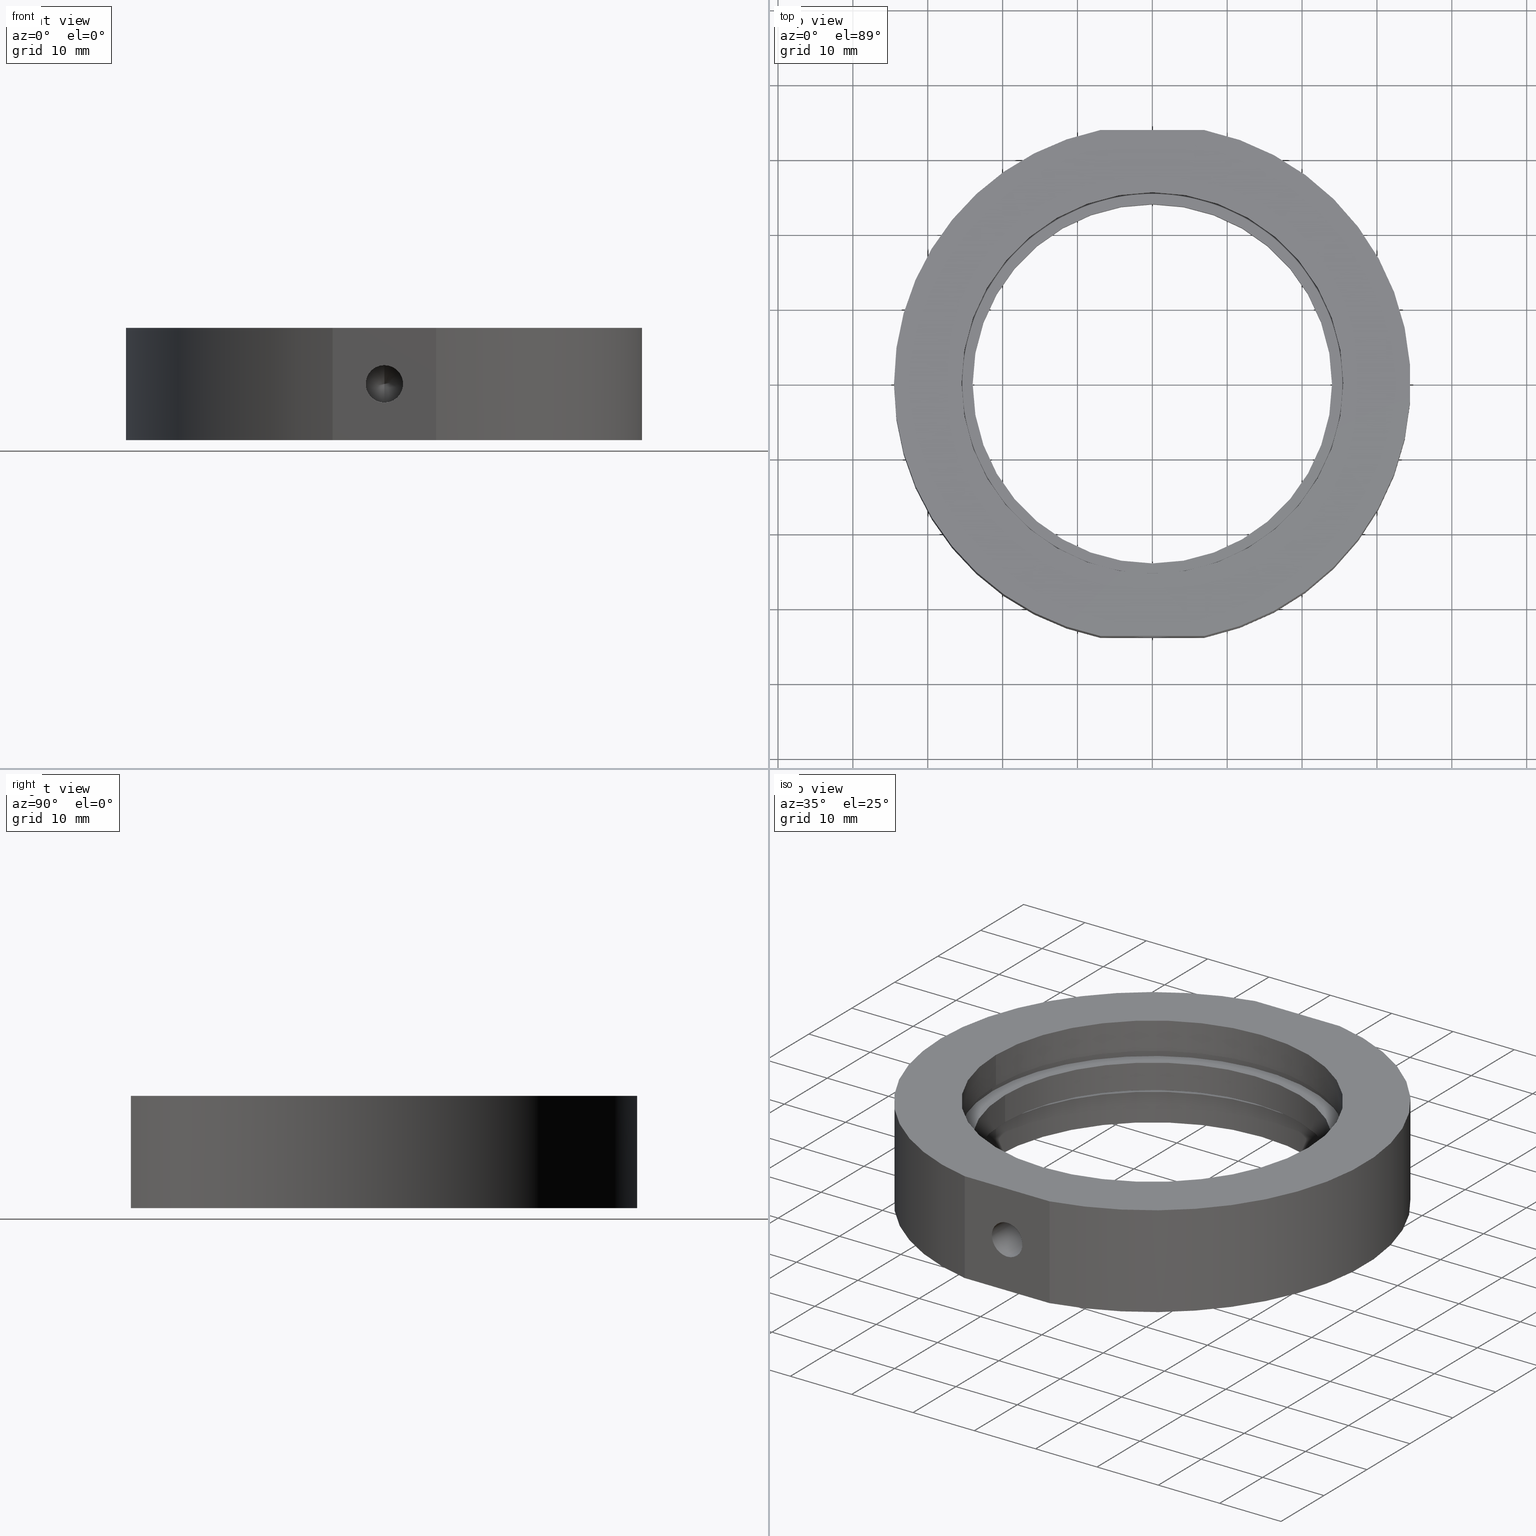
[diagram: canonical four-view strip — front | top / right | iso, engineering-drawing reading convention]
A machine part, canonical four-view strip (front | top / right | iso — engineering-drawing reading convention). The complete STEP part file that produces these views, byte-faithful:
ISO-10303-21;
HEADER;
FILE_DESCRIPTION (( 'STEP AP203' ),
    '1' );
FILE_NAME ('502010.STEP',
    '2019-09-04T06:12:05',
    ( '' ),
    ( '' ),
    'SwSTEP 2.0',
    'SolidWorks 2016',
    '' );
FILE_SCHEMA (( 'CONFIG_CONTROL_DESIGN' ));
ENDSEC;

DATA;
#1 = CARTESIAN_POINT ( 'NONE',  ( 5.204170427930421300E-015, -33.79999999999999700, 0.0000000000000000000 ) ) ;
#2 = COORDINATED_UNIVERSAL_TIME_OFFSET ( 8, 0, .AHEAD. ) ;
#3 = LINE ( 'NONE', #8, #737 ) ;
#4 = FACE_BOUND ( 'NONE', #490, .T. ) ;
#5 = ORIENTED_EDGE ( 'NONE', *, *, #810, .F. ) ;
#6 = ORIENTED_EDGE ( 'NONE', *, *, #671, .F. ) ;
#7 = VERTEX_POINT ( 'NONE', #347 ) ;
#8 = CARTESIAN_POINT ( 'NONE',  ( -25.49999999999999600, 0.0000000000000000000, -31.93906810035839800 ) ) ;
#9 = CARTESIAN_POINT ( 'NONE',  ( 6.071532165918824800E-015, 28.29999999999999700, 0.0000000000000000000 ) ) ;
#10 = DIRECTION ( 'NONE',  ( -1.224646799147350500E-016, -0.0000000000000000000, -1.000000000000000000 ) ) ;
#11 = CARTESIAN_POINT ( 'NONE',  ( 6.071532165918824800E-015, 28.29999999999999700, 0.0000000000000000000 ) ) ;
#12 = CALENDAR_DATE ( 2019, 4, 9 ) ;
#13 = CIRCLE ( 'NONE', #843, 2.499999999999997800 ) ;
#14 = DIRECTION ( 'NONE',  ( -1.224646799147350500E-016, -0.0000000000000000000, -1.000000000000000000 ) ) ;
#15 = FACE_OUTER_BOUND ( 'NONE', #848, .T. ) ;
#16 = EDGE_LOOP ( 'NONE', ( #274, #426, #438 ) ) ;
#17 = ADVANCED_FACE ( 'NONE', ( #15 ), #775, .F. ) ;
#18 = AXIS2_PLACEMENT_3D ( 'NONE', #179, #909, #103 ) ;
#19 = PERSON_AND_ORGANIZATION_ROLE ( 'creator' ) ;
#20 = CARTESIAN_POINT ( 'NONE',  ( 3.544013711941110900E-015, 0.0000000000000000000, -2.999999999999999100 ) ) ;
#21 = ADVANCED_FACE ( 'NONE', ( #577 ), #95, .F. ) ;
#22 = APPROVAL_ROLE ( '' ) ;
#23 = DIRECTION ( 'NONE',  ( -1.224646799147350500E-016, -0.0000000000000000000, -1.000000000000000000 ) ) ;
#24 = DATE_AND_TIME ( #12, #259 ) ;
#25 = EDGE_CURVE ( 'NONE', #929, #867, #803, .T. ) ;
#26 = CIRCLE ( 'NONE', #875, 25.50000000000000000 ) ;
#27 = CIRCLE ( 'NONE', #403, 1.649999999999998600 ) ;
#28 = CARTESIAN_POINT ( 'NONE',  ( 6.914477565225009700, 33.79999999999999700, 7.500000000000000000 ) ) ;
#29 = EDGE_LOOP ( 'NONE', ( #543, #553, #949, #313 ) ) ;
#30 = ORIENTED_EDGE ( 'NONE', *, *, #780, .T. ) ;
#31 = ORIENTED_EDGE ( 'NONE', *, *, #245, .T. ) ;
#32 = AXIS2_PLACEMENT_3D ( 'NONE', #817, #882, #889 ) ;
#33 = EDGE_CURVE ( 'NONE', #378, #446, #341, .T. ) ;
#34 = DATE_AND_TIME ( #42, #397 ) ;
#35 = FACE_OUTER_BOUND ( 'NONE', #331, .T. ) ;
#36 = ORIENTED_EDGE ( 'NONE', *, *, #752, .F. ) ;
#37 = VERTEX_POINT ( 'NONE', #345 ) ;
#38 = CARTESIAN_POINT ( 'NONE',  ( 5.204170427930421300E-015, -28.29999999999999700, 0.0000000000000000000 ) ) ;
#39 = CARTESIAN_POINT ( 'NONE',  ( 5.204170427930421300E-015, -28.29999999999999700, 0.0000000000000000000 ) ) ;
#40 = EDGE_CURVE ( 'NONE', #234, #753, #183, .T. ) ;
#41 = DIRECTION ( 'NONE',  ( 0.0000000000000000000, 0.0000000000000000000, -1.000000000000000000 ) ) ;
#42 = CALENDAR_DATE ( 2019, 4, 9 ) ;
#43 = CYLINDRICAL_SURFACE ( 'NONE', #278, 34.49999999999999300 ) ;
#44 = DIRECTION ( 'NONE',  ( 0.0000000000000000000, -0.5150380749100554900, -0.8571673007021115600 ) ) ;
#45 = EDGE_CURVE ( 'NONE', #470, #402, #916, .T. ) ;
#46 = CIRCLE ( 'NONE', #336, 34.49999999999998600 ) ;
#47 = EDGE_LOOP ( 'NONE', ( #50, #197 ) ) ;
#48 = DIRECTION ( 'NONE',  ( -1.224646799147350500E-016, -0.0000000000000000000, -1.000000000000000000 ) ) ;
#49 = ORIENTED_EDGE ( 'NONE', *, *, #759, .F. ) ;
#50 = ORIENTED_EDGE ( 'NONE', *, *, #40, .F. ) ;
#51 = DIRECTION ( 'NONE',  ( 1.049727191138617700E-016, -0.5150380749100554900, 0.8571673007021115600 ) ) ;
#52 = CARTESIAN_POINT ( 'NONE',  ( -34.49999999999997900, 0.0000000000000000000, 7.500000000000010700 ) ) ;
#53 = DIRECTION ( 'NONE',  ( -1.224646799147350500E-016, -0.0000000000000000000, -1.000000000000000000 ) ) ;
#54 = CALENDAR_DATE ( 2019, 4, 9 ) ;
#55 = CARTESIAN_POINT ( 'NONE',  ( 6.071532165918824800E-015, 33.79999999999999700, 0.0000000000000000000 ) ) ;
#56 = CARTESIAN_POINT ( 'NONE',  ( 6.914477565225066500, 33.79999999999998300, -31.93906810035839800 ) ) ;
#57 = CIRCLE ( 'NONE', #809, 24.00000000000000000 ) ;
#58 = FACE_BOUND ( 'NONE', #47, .T. ) ;
#59 = CARTESIAN_POINT ( 'NONE',  ( -33.15197265346817100, 33.79999999999999700, -41.50000000000002100 ) ) ;
#60 = VERTEX_POINT ( 'NONE', #935 ) ;
#61 = CARTESIAN_POINT ( 'NONE',  ( 0.0000000000000000000, 0.0000000000000000000, -31.93906810035839800 ) ) ;
#62 = ORIENTED_EDGE ( 'NONE', *, *, #655, .F. ) ;
#63 = CARTESIAN_POINT ( 'NONE',  ( 25.50000000000000400, 0.0000000000000000000, 2.000000000000000400 ) ) ;
#64 = AXIS2_PLACEMENT_3D ( 'NONE', #458, #98, #611 ) ;
#65 = DIRECTION ( 'NONE',  ( -1.224646799147350500E-016, 0.0000000000000000000, -1.000000000000000000 ) ) ;
#66 = LOCAL_TIME ( 14, 12, 5.000000000000000000, #808 ) ;
#67 = LINE ( 'NONE', #279, #320 ) ;
#68 = ORIENTED_EDGE ( 'NONE', *, *, #290, .F. ) ;
#69 = ORIENTED_EDGE ( 'NONE', *, *, #571, .F. ) ;
#70 = ORIENTED_EDGE ( 'NONE', *, *, #891, .F. ) ;
#71 = CC_DESIGN_APPROVAL ( #933, ( #649 ) ) ;
#72 = CARTESIAN_POINT ( 'NONE',  ( 24.00000000000000400, 2.939152317953647900E-015, -2.000000000000001300 ) ) ;
#73 = AXIS2_PLACEMENT_3D ( 'NONE', #797, #423, #267 ) ;
#74 = ORIENTED_EDGE ( 'NONE', *, *, #792, .T. ) ;
#75 = PLANE ( 'NONE',  #582 ) ;
#76 = CARTESIAN_POINT ( 'NONE',  ( 3.544013711941110900E-015, 0.0000000000000000000, -2.999999999999999100 ) ) ;
#77 = DIRECTION ( 'NONE',  ( -1.000000000000000000, 0.0000000000000000000, 1.224646799147350500E-016 ) ) ;
#78 = AXIS2_PLACEMENT_3D ( 'NONE', #145, #222, #744 ) ;
#79 = EDGE_CURVE ( 'NONE', #658, #907, #695, .T. ) ;
#80 = CARTESIAN_POINT ( 'NONE',  ( -6.914477565224999000, 33.79999999999999700, 7.500000000000000000 ) ) ;
#81 = CARTESIAN_POINT ( 'NONE',  ( 4.481592815694223400E-015, 27.30857997860452400, 0.0000000000000000000 ) ) ;
#82 = CYLINDRICAL_SURFACE ( 'NONE', #327, 2.499999999999998700 ) ;
#83 = CYLINDRICAL_SURFACE ( 'NONE', #391, 25.50000000000000000 ) ;
#84 = DIRECTION ( 'NONE',  ( -1.224646799147350500E-016, -0.0000000000000000000, -1.000000000000000000 ) ) ;
#85 = EDGE_LOOP ( 'NONE', ( #896, #106 ) ) ;
#86 = CARTESIAN_POINT ( 'NONE',  ( 4.829892851045829500E-015, 0.0000000000000000000, 7.500000000000007100 ) ) ;
#87 = EDGE_LOOP ( 'NONE', ( #813, #944, #492, #276 ) ) ;
#88 = DATE_TIME_ROLE ( 'classification_date' ) ;
#89 = DIRECTION ( 'NONE',  ( -0.0000000000000000000, 1.000000000000000000, -0.0000000000000000000 ) ) ;
#90 = DIRECTION ( 'NONE',  ( -1.224646799147350500E-016, -0.0000000000000000000, -1.000000000000000000 ) ) ;
#91 = AXIS2_PLACEMENT_3D ( 'NONE', #63, #65, #77 ) ;
#92 = PERSON_AND_ORGANIZATION_ROLE ( 'creator' ) ;
#93 = COORDINATED_UNIVERSAL_TIME_OFFSET ( 8, 0, .AHEAD. ) ;
#94 = CARTESIAN_POINT ( 'NONE',  ( 2.992922652324803100E-015, 0.0000000000000000000, -7.499999999999996400 ) ) ;
#95 = CYLINDRICAL_SURFACE ( 'NONE', #886, 1.649999999999994400 ) ;
#96 = ORIENTED_EDGE ( 'NONE', *, *, #33, .F. ) ;
#97 = ORIENTED_EDGE ( 'NONE', *, *, #118, .F. ) ;
#98 = DIRECTION ( 'NONE',  ( -0.0000000000000000000, 1.000000000000000000, 0.0000000000000000000 ) ) ;
#99 = AXIS2_PLACEMENT_3D ( 'NONE', #793, #876, #568 ) ;
#100 = EDGE_CURVE ( 'NONE', #136, #834, #148, .T. ) ;
#101 = ADVANCED_FACE ( 'NONE', ( #729 ), #501, .F. ) ;
#102 = DIRECTION ( 'NONE',  ( -1.000000000000000000, 0.0000000000000000000, 0.0000000000000000000 ) ) ;
#103 = DIRECTION ( 'NONE',  ( -1.000000000000000000, 0.0000000000000000000, 1.163128767417399300E-016 ) ) ;
#104 = VERTEX_POINT ( 'NONE', #351 ) ;
#105 = ORIENTED_EDGE ( 'NONE', *, *, #392, .T. ) ;
#106 = ORIENTED_EDGE ( 'NONE', *, *, #805, .F. ) ;
#107 = DIRECTION ( 'NONE',  ( -1.000000000000000000, 0.0000000000000000000, 1.257045997084643400E-016 ) ) ;
#108 = EDGE_CURVE ( 'NONE', #174, #907, #469, .T. ) ;
#109 = DIRECTION ( 'NONE',  ( -1.224646799147350500E-016, -0.0000000000000000000, -1.000000000000000000 ) ) ;
#110 = LOCAL_TIME ( 14, 12, 5.000000000000000000, #350 ) ;
#111 = AXIS2_PLACEMENT_3D ( 'NONE', #94, #14, #442 ) ;
#112 = FACE_OUTER_BOUND ( 'NONE', #906, .T. ) ;
#113 = ADVANCED_FACE ( 'NONE', ( #312, #112 ), #565, .F. ) ;
#114 = VERTEX_POINT ( 'NONE', #648 ) ;
#115 = CARTESIAN_POINT ( 'NONE',  ( 4.156337111514786200E-015, 0.0000000000000000000, 2.000000000000001800 ) ) ;
#116 = ORIENTED_EDGE ( 'NONE', *, *, #335, .F. ) ;
#117 = CC_DESIGN_SECURITY_CLASSIFICATION ( #508, ( #576 ) ) ;
#118 = EDGE_CURVE ( 'NONE', #907, #114, #646, .T. ) ;
#119 = DIRECTION ( 'NONE',  ( 0.0000000000000000000, 0.0000000000000000000, 1.000000000000000000 ) ) ;
#120 = AXIS2_PLACEMENT_3D ( 'NONE', #829, #606, #594 ) ;
#121 = CARTESIAN_POINT ( 'NONE',  ( 6.071532165918824800E-015, 33.79999999999999700, 0.0000000000000000000 ) ) ;
#122 = EDGE_CURVE ( 'NONE', #753, #234, #233, .T. ) ;
#123 = VECTOR ( 'NONE', #898, 1000.000000000000000 ) ;
#124 = FACE_BOUND ( 'NONE', #601, .T. ) ;
#125 = ORIENTED_EDGE ( 'NONE', *, *, #671, .T. ) ;
#126 = ORIENTED_EDGE ( 'NONE', *, *, #417, .F. ) ;
#127 = CARTESIAN_POINT ( 'NONE',  ( 0.0000000000000000000, 0.0000000000000000000, -31.93906810035839800 ) ) ;
#128 = AXIS2_PLACEMENT_3D ( 'NONE', #864, #210, #865 ) ;
#129 = DIRECTION ( 'NONE',  ( -1.224646799147350500E-016, -0.0000000000000000000, -1.000000000000000000 ) ) ;
#130 = DIRECTION ( 'NONE',  ( -1.000000000000000000, 0.0000000000000000000, 1.257045997084643400E-016 ) ) ;
#131 = DIRECTION ( 'NONE',  ( -1.000000000000000000, 0.0000000000000000000, 1.163128767417399300E-016 ) ) ;
#132 = CALENDAR_DATE ( 2019, 4, 9 ) ;
#133 = CYLINDRICAL_SURFACE ( 'NONE', #78, 26.10000000000000100 ) ;
#134 = LINE ( 'NONE', #436, #904 ) ;
#135 = AXIS2_PLACEMENT_3D ( 'NONE', #277, #872, #495 ) ;
#136 = VERTEX_POINT ( 'NONE', #569 ) ;
#137 = CARTESIAN_POINT ( 'NONE',  ( 5.204170427930421300E-015, -33.79999999999999700, -2.499999999999999100 ) ) ;
#138 = EDGE_LOOP ( 'NONE', ( #951, #674, #125 ) ) ;
#139 = APPLICATION_CONTEXT ( 'configuration controlled 3d designs of mechanical parts and assemblies' ) ;
#140 = CARTESIAN_POINT ( 'NONE',  ( 25.50000000000000400, 3.122849337825750200E-015, -3.000000000000002200 ) ) ;
#141 = EDGE_CURVE ( 'NONE', #459, #868, #527, .T. ) ;
#142 = CARTESIAN_POINT ( 'NONE',  ( 0.0000000000000000000, 0.0000000000000000000, 0.0000000000000000000 ) ) ;
#143 = DIRECTION ( 'NONE',  ( 1.224646799147350500E-016, 0.0000000000000000000, 1.000000000000000000 ) ) ;
#144 = PERSON_AND_ORGANIZATION ( #188, #879 ) ;
#145 = CARTESIAN_POINT ( 'NONE',  ( 0.0000000000000000000, 0.0000000000000000000, -31.93906810035839800 ) ) ;
#146 = CONICAL_SURFACE ( 'NONE', #439, 2.499999999999997800, 1.029744258676653000 ) ;
#147 = DIRECTION ( 'NONE',  ( 1.000000000000000000, 0.0000000000000000000, -1.224646799147350500E-016 ) ) ;
#148 = CIRCLE ( 'NONE', #687, 34.49999999999998600 ) ;
#149 = ORIENTED_EDGE ( 'NONE', *, *, #141, .T. ) ;
#150 = CARTESIAN_POINT ( 'NONE',  ( -25.49999999999999300, 0.0000000000000000000, 7.500000000000003600 ) ) ;
#151 = ORIENTED_EDGE ( 'NONE', *, *, #556, .T. ) ;
#152 = CARTESIAN_POINT ( 'NONE',  ( 25.50000000000000000, 3.122849337825750200E-015, -31.93906810035839800 ) ) ;
#153 = CARTESIAN_POINT ( 'NONE',  ( 5.510332127717259900E-015, -28.29999999999999700, 2.499999999999997800 ) ) ;
#154 = CC_DESIGN_PERSON_AND_ORGANIZATION_ASSIGNMENT ( #747, #903, ( #508 ) ) ;
#155 = EDGE_CURVE ( 'NONE', #252, #378, #134, .T. ) ;
#156 = APPLICATION_CONTEXT ( 'configuration controlled 3d designs of mechanical parts and assemblies' ) ;
#157 = DIRECTION ( 'NONE',  ( -1.000000000000000000, 0.0000000000000000000, 1.190496503121338200E-016 ) ) ;
#158 = DATE_AND_TIME ( #339, #936 ) ;
#159 = CYLINDRICAL_SURFACE ( 'NONE', #890, 25.49999999999999600 ) ;
#160 = EDGE_LOOP ( 'NONE', ( #529, #243, #719, #206 ) ) ;
#161 = ORIENTED_EDGE ( 'NONE', *, *, #440, .F. ) ;
#162 = AXIS2_PLACEMENT_3D ( 'NONE', #173, #617, #536 ) ;
#163 = ORIENTED_EDGE ( 'NONE', *, *, #290, .T. ) ;
#164 = APPROVAL_STATUS ( 'not_yet_approved' ) ;
#165 = SECURITY_CLASSIFICATION_LEVEL ( 'unclassified' ) ;
#166 = AXIS2_PLACEMENT_3D ( 'NONE', #61, #484, #414 ) ;
#167 = COORDINATED_UNIVERSAL_TIME_OFFSET ( 8, 0, .AHEAD. ) ;
#168 = CONICAL_SURFACE ( 'NONE', #376, 1.649999999999998600, 1.029744258676653200 ) ;
#169 = DIRECTION ( 'NONE',  ( -1.000000000000000000, 0.0000000000000000000, 1.163128767417399300E-016 ) ) ;
#170 = VECTOR ( 'NONE', #44, 1000.000000000000000 ) ;
#171 = VERTEX_POINT ( 'NONE', #665 ) ;
#172 = ORIENTED_EDGE ( 'NONE', *, *, #449, .T. ) ;
#173 = CARTESIAN_POINT ( 'NONE',  ( 4.278801791429521400E-015, 0.0000000000000000000, 3.000000000000002700 ) ) ;
#174 = VERTEX_POINT ( 'NONE', #818 ) ;
#175 = PRODUCT_DEFINITION ( 'δ֪', '', #576, #427 ) ;
#176 = EDGE_CURVE ( 'NONE', #324, #929, #895, .T. ) ;
#177 = CARTESIAN_POINT ( 'NONE',  ( 6.071532165918824800E-015, 33.79999999999999700, 1.649999999999989900 ) ) ;
#178 = AXIS2_PLACEMENT_3D ( 'NONE', #200, #344, #873 ) ;
#179 = CARTESIAN_POINT ( 'NONE',  ( 4.278801791429521400E-015, 0.0000000000000000000, 3.000000000000002700 ) ) ;
#180 = LOCAL_TIME ( 14, 12, 5.000000000000000000, #431 ) ;
#181 = FACE_OUTER_BOUND ( 'NONE', #686, .T. ) ;
#182 = CARTESIAN_POINT ( 'NONE',  ( -6.914477565225033700, -33.79999999999999700, -7.499999999999995600 ) ) ;
#183 = CIRCLE ( 'NONE', #73, 25.50000000000000000 ) ;
#184 = ORIENTED_EDGE ( 'NONE', *, *, #810, .T. ) ;
#185 = DIRECTION ( 'NONE',  ( -1.224646799147350500E-016, -0.0000000000000000000, -1.000000000000000000 ) ) ;
#186 = ADVANCED_FACE ( 'NONE', ( #856, #457 ), #294, .F. ) ;
#187 = APPROVAL ( #760, 'δָ��' ) ;
#188 = PERSON ( 'δָ��', 'δָ��', 'δָ��', ('δָ��'), ('δָ��'), ('δָ��') ) ;
#189 = ADVANCED_FACE ( 'NONE', ( #124, #251 ), #874, .F. ) ;
#190 = APPROVAL_PERSON_ORGANIZATION ( #388, #187, #521 ) ;
#191 = AXIS2_PLACEMENT_3D ( 'NONE', #59, #945, #721 ) ;
#192 = CIRCLE ( 'NONE', #485, 1.649999999999989900 ) ;
#193 = CARTESIAN_POINT ( 'NONE',  ( -24.00000000000000000, 0.0000000000000000000, -31.93906810035839800 ) ) ;
#194 = FACE_BOUND ( 'NONE', #708, .T. ) ;
#195 = ORIENTED_EDGE ( 'NONE', *, *, #739, .T. ) ;
#196 = CARTESIAN_POINT ( 'NONE',  ( 5.204170427930421300E-015, -33.79999999999999700, 0.0000000000000000000 ) ) ;
#197 = ORIENTED_EDGE ( 'NONE', *, *, #122, .F. ) ;
#198 = DIRECTION ( 'NONE',  ( -0.0000000000000000000, 1.000000000000000000, -0.0000000000000000000 ) ) ;
#199 = PERSON_AND_ORGANIZATION ( #188, #879 ) ;
#200 = CARTESIAN_POINT ( 'NONE',  ( 3.666478391855845600E-015, 0.0000000000000000000, -1.999999999999998200 ) ) ;
#201 = EDGE_CURVE ( 'NONE', #60, #171, #261, .T. ) ;
#202 = VECTOR ( 'NONE', #466, 1000.000000000000000 ) ;
#203 = VERTEX_POINT ( 'NONE', #137 ) ;
#204 = CARTESIAN_POINT ( 'NONE',  ( 0.0000000000000000000, 0.0000000000000000000, -31.93906810035839800 ) ) ;
#205 = EDGE_LOOP ( 'NONE', ( #332, #218, #732 ) ) ;
#206 = ORIENTED_EDGE ( 'NONE', *, *, #655, .T. ) ;
#207 = CARTESIAN_POINT ( 'NONE',  ( 6.071532165918824800E-015, 33.79999999999999700, 1.649999999999994400 ) ) ;
#208 = CARTESIAN_POINT ( 'NONE',  ( -6.914477565225033700, 33.79999999999999700, -7.499999999999995600 ) ) ;
#209 = AXIS2_PLACEMENT_3D ( 'NONE', #9, #236, #374 ) ;
#210 = DIRECTION ( 'NONE',  ( -1.224646799147350500E-016, -0.0000000000000000000, -1.000000000000000000 ) ) ;
#211 = DIRECTION ( 'NONE',  ( -1.224646799147350500E-016, -0.0000000000000000000, -1.000000000000000000 ) ) ;
#212 = MECHANICAL_CONTEXT ( 'NONE', #139, 'mechanical' ) ;
#213 = APPROVAL_PERSON_ORGANIZATION ( #476, #933, #533 ) ;
#214 = VECTOR ( 'NONE', #10, 1000.000000000000000 ) ;
#215 = FACE_OUTER_BOUND ( 'NONE', #567, .T. ) ;
#216 = DIRECTION ( 'NONE',  ( 0.0000000000000000000, 0.0000000000000000000, 1.000000000000000000 ) ) ;
#217 = AXIS2_PLACEMENT_3D ( 'NONE', #204, #53, #787 ) ;
#218 = ORIENTED_EDGE ( 'NONE', *, *, #176, .T. ) ;
#219 = DIRECTION ( 'NONE',  ( -1.224646799147350500E-016, -0.0000000000000000000, -1.000000000000000000 ) ) ;
#220 = ORIENTED_EDGE ( 'NONE', *, *, #304, .T. ) ;
#221 = VERTEX_POINT ( 'NONE', #140 ) ;
#222 = DIRECTION ( 'NONE',  ( -1.224646799147350500E-016, -0.0000000000000000000, -1.000000000000000000 ) ) ;
#223 = CARTESIAN_POINT ( 'NONE',  ( 26.10000000000000100, 3.196328145774592300E-015, -31.93906810035839800 ) ) ;
#224 = AXIS2_PLACEMENT_3D ( 'NONE', #121, #643, #346 ) ;
#225 = EDGE_CURVE ( 'NONE', #503, #342, #598, .T. ) ;
#226 = DIRECTION ( 'NONE',  ( 0.0000000000000000000, 0.0000000000000000000, 1.000000000000000000 ) ) ;
#227 = DIRECTION ( 'NONE',  ( -1.000000000000000000, 0.0000000000000000000, 2.011273595335428800E-016 ) ) ;
#228 = DIRECTION ( 'NONE',  ( -1.224646799147350500E-016, -0.0000000000000000000, -1.000000000000000000 ) ) ;
#229 = LOCAL_TIME ( 14, 12, 5.000000000000000000, #703 ) ;
#230 = CIRCLE ( 'NONE', #289, 25.50000000000000000 ) ;
#231 = DIRECTION ( 'NONE',  ( -1.224646799147350500E-016, -0.0000000000000000000, -1.000000000000000000 ) ) ;
#232 = CC_DESIGN_DATE_AND_TIME_ASSIGNMENT ( #453, #605, ( #175 ) ) ;
#233 = CIRCLE ( 'NONE', #532, 25.50000000000000000 ) ;
#234 = VERTEX_POINT ( 'NONE', #735 ) ;
#235 = DIRECTION ( 'NONE',  ( -1.000000000000000000, 0.0000000000000000000, 1.264902534566421900E-016 ) ) ;
#236 = DIRECTION ( 'NONE',  ( -0.0000000000000000000, 1.000000000000000000, -0.0000000000000000000 ) ) ;
#237 = CC_DESIGN_PERSON_AND_ORGANIZATION_ASSIGNMENT ( #499, #756, ( #361 ) ) ;
#238 = PERSON_AND_ORGANIZATION_ROLE ( 'design_supplier' ) ;
#239 = APPROVAL_PERSON_ORGANIZATION ( #199, #920, #22 ) ;
#240 = FACE_OUTER_BOUND ( 'NONE', #87, .T. ) ;
#241 = PERSON_AND_ORGANIZATION_ROLE ( 'creator' ) ;
#242 = CYLINDRICAL_SURFACE ( 'NONE', #244, 34.49999999999999300 ) ;
#243 = ORIENTED_EDGE ( 'NONE', *, *, #792, .F. ) ;
#244 = AXIS2_PLACEMENT_3D ( 'NONE', #310, #520, #227 ) ;
#245 = EDGE_CURVE ( 'NONE', #402, #883, #823, .T. ) ;
#246 = ORIENTED_EDGE ( 'NONE', *, *, #25, .T. ) ;
#247 = EDGE_LOOP ( 'NONE', ( #74, #786 ) ) ;
#248 = CARTESIAN_POINT ( 'NONE',  ( 25.50000000000000400, -33.79999999999999700, -7.500000000000000900 ) ) ;
#249 = LINE ( 'NONE', #807, #309 ) ;
#250 = FACE_OUTER_BOUND ( 'NONE', #769, .T. ) ;
#251 = FACE_OUTER_BOUND ( 'NONE', #247, .T. ) ;
#252 = VERTEX_POINT ( 'NONE', #208 ) ;
#253 = DIRECTION ( 'NONE',  ( -1.000000000000000000, 0.0000000000000000000, 0.0000000000000000000 ) ) ;
#254 = PRODUCT_RELATED_PRODUCT_CATEGORY ( 'detail', '', ( #385 ) ) ;
#255 = EDGE_CURVE ( 'NONE', #952, #637, #694, .T. ) ;
#256 = DIRECTION ( 'NONE',  ( 0.0000000000000000000, 0.0000000000000000000, 1.000000000000000000 ) ) ;
#257 = ADVANCED_FACE ( 'NONE', ( #58, #799 ), #75, .F. ) ;
#258 = DIRECTION ( 'NONE',  ( -1.224646799147350500E-016, -0.0000000000000000000, -1.000000000000000000 ) ) ;
#259 = LOCAL_TIME ( 14, 12, 5.000000000000000000, #2 ) ;
#260 = CYLINDRICAL_SURFACE ( 'NONE', #654, 26.10000000000000100 ) ;
#261 = LINE ( 'NONE', #223, #515 ) ;
#262 = ADVANCED_FACE ( 'NONE', ( #377 ), #562, .F. ) ;
#263 = EDGE_LOOP ( 'NONE', ( #447, #105, #265, #789 ) ) ;
#264 = ORIENTED_EDGE ( 'NONE', *, *, #921, .F. ) ;
#265 = ORIENTED_EDGE ( 'NONE', *, *, #122, .T. ) ;
#266 = EDGE_CURVE ( 'NONE', #37, #614, #728, .T. ) ;
#267 = DIRECTION ( 'NONE',  ( -1.000000000000000000, 0.0000000000000000000, 1.360567432138672300E-016 ) ) ;
#268 = DIRECTION ( 'NONE',  ( 1.000000000000000000, 0.0000000000000000000, -1.224646799147350500E-016 ) ) ;
#269 = CC_DESIGN_APPROVAL ( #473, ( #175 ) ) ;
#270 = DIRECTION ( 'NONE',  ( -1.000000000000000000, 0.0000000000000000000, 2.011273595335428800E-016 ) ) ;
#271 = LINE ( 'NONE', #662, #214 ) ;
#272 = DIRECTION ( 'NONE',  ( -0.0000000000000000000, 1.000000000000000000, -0.0000000000000000000 ) ) ;
#273 = LINE ( 'NONE', #302, #340 ) ;
#274 = ORIENTED_EDGE ( 'NONE', *, *, #108, .F. ) ;
#275 = DIRECTION ( 'NONE',  ( -0.0000000000000000000, 1.000000000000000000, -0.0000000000000000000 ) ) ;
#276 = ORIENTED_EDGE ( 'NONE', *, *, #33, .T. ) ;
#277 = CARTESIAN_POINT ( 'NONE',  ( 5.204170427930421300E-015, -28.29999999999999700, 0.0000000000000000000 ) ) ;
#278 = AXIS2_PLACEMENT_3D ( 'NONE', #791, #870, #270 ) ;
#279 = CARTESIAN_POINT ( 'NONE',  ( -33.15197265346817100, 33.79999999999999700, 7.500000000000002700 ) ) ;
#280 = DIRECTION ( 'NONE',  ( -1.000000000000000000, 0.0000000000000000000, 1.163128767417399300E-016 ) ) ;
#281 = APPROVAL_DATE_TIME ( #573, #920 ) ;
#282 = CC_DESIGN_PERSON_AND_ORGANIZATION_ASSIGNMENT ( #900, #19, ( #835 ) ) ;
#283 = AXIS2_PLACEMENT_3D ( 'NONE', #581, #292, #511 ) ;
#284 = VECTOR ( 'NONE', #950, 1000.000000000000000 ) ;
#285 = DIRECTION ( 'NONE',  ( -1.000000000000000000, 0.0000000000000000000, 1.360567432138672300E-016 ) ) ;
#286 = EDGE_LOOP ( 'NONE', ( #624, #246, #814, #5 ) ) ;
#287 = ORIENTED_EDGE ( 'NONE', *, *, #608, .T. ) ;
#288 = DIRECTION ( 'NONE',  ( 1.000000000000000000, 0.0000000000000000000, -1.224646799147350500E-016 ) ) ;
#289 = AXIS2_PLACEMENT_3D ( 'NONE', #20, #231, #157 ) ;
#290 = EDGE_CURVE ( 'NONE', #801, #252, #667, .T. ) ;
#291 = CARTESIAN_POINT ( 'NONE',  ( 2.992922652324803100E-015, 0.0000000000000000000, -7.499999999999996400 ) ) ;
#292 = DIRECTION ( 'NONE',  ( -1.224646799147350500E-016, -0.0000000000000000000, -1.000000000000000000 ) ) ;
#293 = DIRECTION ( 'NONE',  ( -1.000000000000000000, -0.0000000000000000000, -0.0000000000000000000 ) ) ;
#294 = PLANE ( 'NONE',  #91 ) ;
#295 = FACE_OUTER_BOUND ( 'NONE', #160, .T. ) ;
#296 = CARTESIAN_POINT ( 'NONE',  ( 6.273598887778138000E-015, 28.29999999999999700, -1.649999999999998600 ) ) ;
#297 = ORIENTED_EDGE ( 'NONE', *, *, #338, .F. ) ;
#298 = UNCERTAINTY_MEASURE_WITH_UNIT (LENGTH_MEASURE( 1.000000000000000100E-005 ), #371, 'distance_accuracy_value', 'NONE');
#299 = DIRECTION ( 'NONE',  ( -1.000000000000000000, 0.0000000000000000000, 1.163128767417399300E-016 ) ) ;
#300 = ORIENTED_EDGE ( 'NONE', *, *, #255, .T. ) ;
#301 = EDGE_LOOP ( 'NONE', ( #97, #517, #415, #287 ) ) ;
#302 = CARTESIAN_POINT ( 'NONE',  ( 5.204170427930421300E-015, -33.79999999999999700, -2.499999999999998700 ) ) ;
#303 = APPROVAL ( #164, 'δָ��' ) ;
#304 = EDGE_CURVE ( 'NONE', #378, #342, #938, .T. ) ;
#305 = PERSON_AND_ORGANIZATION_ROLE ( 'design_supplier' ) ;
#306 = APPROVAL_DATE_TIME ( #629, #187 ) ;
#307 = ADVANCED_FACE ( 'NONE', ( #444 ), #634, .F. ) ;
#308 = COORDINATED_UNIVERSAL_TIME_OFFSET ( 8, 0, .AHEAD. ) ;
#309 = VECTOR ( 'NONE', #84, 1000.000000000000000 ) ;
#310 = CARTESIAN_POINT ( 'NONE',  ( 0.0000000000000000000, 0.0000000000000000000, -31.93906810035839800 ) ) ;
#311 = AXIS2_PLACEMENT_3D ( 'NONE', #622, #771, #699 ) ;
#312 = FACE_BOUND ( 'NONE', #482, .T. ) ;
#313 = ORIENTED_EDGE ( 'NONE', *, *, #338, .T. ) ;
#314 = ORIENTED_EDGE ( 'NONE', *, *, #539, .T. ) ;
#315 = DIRECTION ( 'NONE',  ( -1.224646799147350500E-016, -0.0000000000000000000, -1.000000000000000000 ) ) ;
#316 = APPLICATION_PROTOCOL_DEFINITION ( 'international standard', 'config_control_design', 1994, #830 ) ;
#317 = CARTESIAN_POINT ( 'NONE',  ( 4.278801791429521400E-015, 0.0000000000000000000, 3.000000000000002700 ) ) ;
#318 = EDGE_CURVE ( 'NONE', #470, #550, #57, .T. ) ;
#319 = CARTESIAN_POINT ( 'NONE',  ( -25.49999999999999600, 0.0000000000000000000, -2.999999999999996000 ) ) ;
#320 = VECTOR ( 'NONE', #652, 1000.000000000000000 ) ;
#321 = CARTESIAN_POINT ( 'NONE',  ( 4.829892851045829500E-015, 0.0000000000000000000, 7.500000000000007100 ) ) ;
#322 = ORIENTED_EDGE ( 'NONE', *, *, #318, .T. ) ;
#323 = CC_DESIGN_PERSON_AND_ORGANIZATION_ASSIGNMENT ( #455, #387, ( #385 ) ) ;
#324 = VERTEX_POINT ( 'NONE', #81 ) ;
#325 = ORIENTED_EDGE ( 'NONE', *, *, #449, .F. ) ;
#326 = CARTESIAN_POINT ( 'NONE',  ( 0.0000000000000000000, 0.0000000000000000000, -31.93906810035839800 ) ) ;
#327 = AXIS2_PLACEMENT_3D ( 'NONE', #718, #416, #953 ) ;
#328 = PERSON_AND_ORGANIZATION ( #188, #879 ) ;
#329 = ADVANCED_FACE ( 'NONE', ( #181 ), #159, .F. ) ;
#330 = VECTOR ( 'NONE', #650, 1000.000000000000000 ) ;
#331 = EDGE_LOOP ( 'NONE', ( #731, #297, #825, #587 ) ) ;
#332 = ORIENTED_EDGE ( 'NONE', *, *, #710, .F. ) ;
#333 = CARTESIAN_POINT ( 'NONE',  ( 0.0000000000000000000, 0.0000000000000000000, -31.93906810035839800 ) ) ;
#334 = VERTEX_POINT ( 'NONE', #676 ) ;
#335 = EDGE_CURVE ( 'NONE', #446, #503, #798, .T. ) ;
#336 = AXIS2_PLACEMENT_3D ( 'NONE', #321, #840, #107 ) ;
#337 = CARTESIAN_POINT ( 'NONE',  ( -26.09999999999999800, 0.0000000000000000000, -2.999999999999996000 ) ) ;
#338 = EDGE_CURVE ( 'NONE', #647, #136, #645, .T. ) ;
#339 = CALENDAR_DATE ( 2019, 4, 9 ) ;
#340 = VECTOR ( 'NONE', #599, 1000.000000000000000 ) ;
#341 = LINE ( 'NONE', #56, #422 ) ;
#342 = VERTEX_POINT ( 'NONE', #373 ) ;
#343 = EDGE_LOOP ( 'NONE', ( #6, #788, #395, #161 ) ) ;
#344 = DIRECTION ( 'NONE',  ( -1.224646799147350500E-016, -0.0000000000000000000, -1.000000000000000000 ) ) ;
#345 = CARTESIAN_POINT ( 'NONE',  ( 26.10000000000000500, 3.196328145774592300E-015, 1.999999999999998700 ) ) ;
#346 = DIRECTION ( 'NONE',  ( 0.0000000000000000000, 0.0000000000000000000, 1.000000000000000000 ) ) ;
#347 = CARTESIAN_POINT ( 'NONE',  ( -25.49999999999999300, 0.0000000000000000000, 3.000000000000005800 ) ) ;
#348 = CC_DESIGN_APPROVAL ( #920, ( #835 ) ) ;
#349 = EDGE_CURVE ( 'NONE', #929, #869, #948, .T. ) ;
#350 = COORDINATED_UNIVERSAL_TIME_OFFSET ( 8, 0, .AHEAD. ) ;
#351 = CARTESIAN_POINT ( 'NONE',  ( 25.50000000000000000, 3.122849337825749800E-015, 2.999999999999999600 ) ) ;
#352 = CYLINDRICAL_SURFACE ( 'NONE', #726, 24.00000000000000000 ) ;
#353 = ORIENTED_EDGE ( 'NONE', *, *, #201, .T. ) ;
#354 = DIRECTION ( 'NONE',  ( -1.224646799147350500E-016, -0.0000000000000000000, -1.000000000000000000 ) ) ;
#355 = EDGE_LOOP ( 'NONE', ( #720, #381, #151, #696 ) ) ;
#356 = DIRECTION ( 'NONE',  ( -1.224646799147350500E-016, -0.0000000000000000000, -1.000000000000000000 ) ) ;
#357 = ORIENTED_EDGE ( 'NONE', *, *, #518, .F. ) ;
#358 = AXIS2_PLACEMENT_3D ( 'NONE', #196, #412, #937 ) ;
#359 = DIRECTION ( 'NONE',  ( -0.0000000000000000000, 1.000000000000000000, -0.0000000000000000000 ) ) ;
#360 = COORDINATED_UNIVERSAL_TIME_OFFSET ( 8, 0, .AHEAD. ) ;
#361 = SECURITY_CLASSIFICATION ( '', '', #462 ) ;
#362 = DIRECTION ( 'NONE',  ( 0.0000000000000000000, 0.0000000000000000000, 1.000000000000000000 ) ) ;
#363 = VECTOR ( 'NONE', #580, 1000.000000000000000 ) ;
#364 = CIRCLE ( 'NONE', #940, 26.10000000000000100 ) ;
#365 = CARTESIAN_POINT ( 'NONE',  ( 4.278801791429521400E-015, 0.0000000000000000000, 3.000000000000002700 ) ) ;
#366 = ORIENTED_EDGE ( 'NONE', *, *, #844, .T. ) ;
#367 = ORIENTED_EDGE ( 'NONE', *, *, #836, .F. ) ;
#368 = ORIENTED_EDGE ( 'NONE', *, *, #702, .F. ) ;
#369 = DIRECTION ( 'NONE',  ( -1.000000000000000000, 0.0000000000000000000, 0.0000000000000000000 ) ) ;
#370 = CC_DESIGN_PERSON_AND_ORGANIZATION_ASSIGNMENT ( #913, #92, ( #175 ) ) ;
#371 =( LENGTH_UNIT ( ) NAMED_UNIT ( * ) SI_UNIT ( .MILLI., .METRE. ) );
#372 = PRODUCT_DEFINITION_SHAPE ( 'NONE', 'NONE',  #649 ) ;
#373 = CARTESIAN_POINT ( 'NONE',  ( 6.914477565225039000, -33.79999999999999700, -7.499999999999997300 ) ) ;
#374 = DIRECTION ( 'NONE',  ( 0.0000000000000000000, 0.0000000000000000000, 1.000000000000000000 ) ) ;
#375 = PERSON_AND_ORGANIZATION ( #188, #879 ) ;
#376 = AXIS2_PLACEMENT_3D ( 'NONE', #892, #359, #362 ) ;
#377 = FACE_OUTER_BOUND ( 'NONE', #472, .T. ) ;
#378 = VERTEX_POINT ( 'NONE', #452 ) ;
#379 = ADVANCED_FACE ( 'NONE', ( #215, #194 ), #755, .F. ) ;
#380 = DIRECTION ( 'NONE',  ( -1.224646799147350500E-016, -0.0000000000000000000, -1.000000000000000000 ) ) ;
#381 = ORIENTED_EDGE ( 'NONE', *, *, #956, .T. ) ;
#382 = APPROVAL_ROLE ( '' ) ;
#383 = AXIS2_PLACEMENT_3D ( 'NONE', #502, #143, #878 ) ;
#384 = PERSON_AND_ORGANIZATION_ROLE ( 'design_owner' ) ;
#385 = PRODUCT ( '502010', '502010', '', ( #838 ) ) ;
#386 = DIRECTION ( 'NONE',  ( -1.000000000000000000, 0.0000000000000000000, 1.190496503121338400E-016 ) ) ;
#387 = PERSON_AND_ORGANIZATION_ROLE ( 'design_owner' ) ;
#388 = PERSON_AND_ORGANIZATION ( #188, #879 ) ;
#389 = VECTOR ( 'NONE', #228, 1000.000000000000000 ) ;
#390 = CARTESIAN_POINT ( 'NONE',  ( 6.914477565225009700, -33.79999999999999700, 7.500000000000000000 ) ) ;
#391 = AXIS2_PLACEMENT_3D ( 'NONE', #326, #463, #770 ) ;
#392 = EDGE_CURVE ( 'NONE', #221, #753, #468, .T. ) ;
#393 = CONICAL_SURFACE ( 'NONE', #790, 1.649999999999998600, 1.029744258676653200 ) ;
#394 = ORIENTED_EDGE ( 'NONE', *, *, #853, .T. ) ;
#395 = ORIENTED_EDGE ( 'NONE', *, *, #722, .T. ) ;
#396 = CARTESIAN_POINT ( 'NONE',  ( 24.00000000000000400, 2.939152317953647900E-015, 1.999999999999998700 ) ) ;
#397 = LOCAL_TIME ( 14, 12, 5.000000000000000000, #308 ) ;
#398 = LINE ( 'NONE', #688, #202 ) ;
#399 = CARTESIAN_POINT ( 'NONE',  ( 3.544013711941110900E-015, 0.0000000000000000000, -2.999999999999999100 ) ) ;
#400 = ORIENTED_EDGE ( 'NONE', *, *, #155, .T. ) ;
#401 = ORIENTED_EDGE ( 'NONE', *, *, #487, .F. ) ;
#402 = VERTEX_POINT ( 'NONE', #522 ) ;
#403 = AXIS2_PLACEMENT_3D ( 'NONE', #551, #636, #256 ) ;
#404 = DIRECTION ( 'NONE',  ( -0.0000000000000000000, -1.000000000000000000, -0.0000000000000000000 ) ) ;
#405 = ADVANCED_FACE ( 'NONE', ( #894 ), #393, .F. ) ;
#406 = DATE_AND_TIME ( #132, #229 ) ;
#407 = DIRECTION ( 'NONE',  ( -1.000000000000000000, 0.0000000000000000000, 1.264902534566421900E-016 ) ) ;
#408 = CIRCLE ( 'NONE', #128, 25.49999999999999600 ) ;
#409 = LINE ( 'NONE', #932, #170 ) ;
#410 = ADVANCED_FACE ( 'NONE', ( #433 ), #242, .T. ) ;
#411 = ORIENTED_EDGE ( 'NONE', *, *, #589, .T. ) ;
#412 = DIRECTION ( 'NONE',  ( -0.0000000000000000000, -1.000000000000000000, -0.0000000000000000000 ) ) ;
#413 = ORIENTED_EDGE ( 'NONE', *, *, #392, .F. ) ;
#414 = DIRECTION ( 'NONE',  ( -1.000000000000000000, 0.0000000000000000000, 0.0000000000000000000 ) ) ;
#415 = ORIENTED_EDGE ( 'NONE', *, *, #440, .T. ) ;
#416 = DIRECTION ( 'NONE',  ( -0.0000000000000000000, -1.000000000000000000, -0.0000000000000000000 ) ) ;
#417 = EDGE_CURVE ( 'NONE', #461, #221, #230, .T. ) ;
#418 = DIRECTION ( 'NONE',  ( -0.0000000000000000000, -1.000000000000000000, -0.0000000000000000000 ) ) ;
#419 = PERSON_AND_ORGANIZATION ( #188, #879 ) ;
#420 = CARTESIAN_POINT ( 'NONE',  ( -6.914477565225066500, 33.79999999999998300, -31.93906810035839800 ) ) ;
#421 = CIRCLE ( 'NONE', #18, 26.10000000000000100 ) ;
#422 = VECTOR ( 'NONE', #863, 1000.000000000000000 ) ;
#423 = DIRECTION ( 'NONE',  ( -1.224646799147350500E-016, -0.0000000000000000000, -1.000000000000000000 ) ) ;
#424 = ORIENTED_EDGE ( 'NONE', *, *, #40, .T. ) ;
#425 = AXIS2_PLACEMENT_3D ( 'NONE', #673, #216, #888 ) ;
#426 = ORIENTED_EDGE ( 'NONE', *, *, #603, .T. ) ;
#427 = DESIGN_CONTEXT ( 'detailed design', #156, 'design' ) ;
#428 = CARTESIAN_POINT ( 'NONE',  ( 6.914477565225066500, -33.79999999999998300, -31.93906810035839800 ) ) ;
#429 = DIRECTION ( 'NONE',  ( 1.000000000000000000, 0.0000000000000000000, 0.0000000000000000000 ) ) ;
#430 = AXIS2_PLACEMENT_3D ( 'NONE', #365, #730, #280 ) ;
#431 = COORDINATED_UNIVERSAL_TIME_OFFSET ( 8, 0, .AHEAD. ) ;
#432 = FACE_OUTER_BOUND ( 'NONE', #343, .T. ) ;
#433 = FACE_OUTER_BOUND ( 'NONE', #669, .T. ) ;
#434 = DIRECTION ( 'NONE',  ( -1.224646799147350500E-016, -0.0000000000000000000, -1.000000000000000000 ) ) ;
#435 = ORIENTED_EDGE ( 'NONE', *, *, #871, .F. ) ;
#436 = CARTESIAN_POINT ( 'NONE',  ( 25.50000000000000400, 33.79999999999999700, -7.500000000000000900 ) ) ;
#437 = ORIENTED_EDGE ( 'NONE', *, *, #547, .F. ) ;
#438 = ORIENTED_EDGE ( 'NONE', *, *, #79, .T. ) ;
#439 = AXIS2_PLACEMENT_3D ( 'NONE', #39, #640, #561 ) ;
#440 = EDGE_CURVE ( 'NONE', #658, #203, #273, .T. ) ;
#441 = DIRECTION ( 'NONE',  ( -1.224646799147350500E-016, -0.0000000000000000000, -1.000000000000000000 ) ) ;
#442 = DIRECTION ( 'NONE',  ( -1.000000000000000000, 0.0000000000000000000, 1.257045997084642900E-016 ) ) ;
#443 =( NAMED_UNIT ( * ) PLANE_ANGLE_UNIT ( ) SI_UNIT ( $, .RADIAN. ) );
#444 = FACE_OUTER_BOUND ( 'NONE', #861, .T. ) ;
#445 = DIRECTION ( 'NONE',  ( -1.224646799147350500E-016, -0.0000000000000000000, -1.000000000000000000 ) ) ;
#446 = VERTEX_POINT ( 'NONE', #28 ) ;
#447 = ORIENTED_EDGE ( 'NONE', *, *, #911, .F. ) ;
#448 = CC_DESIGN_PERSON_AND_ORGANIZATION_ASSIGNMENT ( #545, #238, ( #835 ) ) ;
#449 = EDGE_CURVE ( 'NONE', #104, #7, #748, .T. ) ;
#450 = DIRECTION ( 'NONE',  ( -1.000000000000000000, 0.0000000000000000000, 1.257045997084642900E-016 ) ) ;
#451 = APPROVAL_ROLE ( '' ) ;
#452 = CARTESIAN_POINT ( 'NONE',  ( 6.914477565225039000, 33.79999999999999700, -7.499999999999997300 ) ) ;
#453 = DATE_AND_TIME ( #524, #736 ) ;
#454 = AXIS2_PLACEMENT_3D ( 'NONE', #705, #258, #922 ) ;
#455 = PERSON_AND_ORGANIZATION ( #188, #879 ) ;
#456 = APPROVAL_STATUS ( 'not_yet_approved' ) ;
#457 = FACE_BOUND ( 'NONE', #928, .T. ) ;
#458 = CARTESIAN_POINT ( 'NONE',  ( -33.15197265346817100, -33.79999999999999700, -41.50000000000002100 ) ) ;
#459 = VERTEX_POINT ( 'NONE', #905 ) ;
#460 = ORIENTED_EDGE ( 'NONE', *, *, #100, .F. ) ;
#461 = VERTEX_POINT ( 'NONE', #319 ) ;
#462 = SECURITY_CLASSIFICATION_LEVEL ( 'unclassified' ) ;
#463 = DIRECTION ( 'NONE',  ( -1.224646799147350500E-016, -0.0000000000000000000, -1.000000000000000000 ) ) ;
#464 = PRODUCT_DEFINITION_SHAPE ( 'NONE', 'NONE',  #175 ) ;
#465 = FACE_OUTER_BOUND ( 'NONE', #742, .T. ) ;
#466 = DIRECTION ( 'NONE',  ( -1.224646799147350500E-016, -0.0000000000000000000, -1.000000000000000000 ) ) ;
#467 = CC_DESIGN_DATE_AND_TIME_ASSIGNMENT ( #725, #681, ( #649 ) ) ;
#468 = LINE ( 'NONE', #152, #774 ) ;
#469 = LINE ( 'NONE', #724, #717 ) ;
#470 = VERTEX_POINT ( 'NONE', #618 ) ;
#471 = DIRECTION ( 'NONE',  ( -1.224646799147350500E-016, -0.0000000000000000000, -1.000000000000000000 ) ) ;
#472 = EDGE_LOOP ( 'NONE', ( #743, #437, #850, #857 ) ) ;
#473 = APPROVAL ( #456, 'δָ��' ) ;
#474 = CARTESIAN_POINT ( 'NONE',  ( 5.204170427930421300E-015, -28.29999999999999700, -2.499999999999997800 ) ) ;
#475 = CARTESIAN_POINT ( 'NONE',  ( 6.071532165918824800E-015, 33.79999999999999700, 0.0000000000000000000 ) ) ;
#476 = PERSON_AND_ORGANIZATION ( #188, #879 ) ;
#477 = ADVANCED_FACE ( 'NONE', ( #575 ), #83, .F. ) ;
#478 = SHAPE_DEFINITION_REPRESENTATION ( #372, #947 ) ;
#479 = VECTOR ( 'NONE', #418, 1000.000000000000000 ) ;
#480 = AXIS2_PLACEMENT_3D ( 'NONE', #659, #90, #299 ) ;
#481 = EDGE_LOOP ( 'NONE', ( #368, #353, #411, #70 ) ) ;
#482 = EDGE_LOOP ( 'NONE', ( #919, #325 ) ) ;
#483 = ADVANCED_FACE ( 'NONE', ( #621 ), #540, .F. ) ;
#484 = DIRECTION ( 'NONE',  ( -1.224646799147350500E-016, -0.0000000000000000000, -1.000000000000000000 ) ) ;
#485 = AXIS2_PLACEMENT_3D ( 'NONE', #55, #275, #733 ) ;
#486 = DIRECTION ( 'NONE',  ( -0.0000000000000000000, 1.000000000000000000, -0.0000000000000000000 ) ) ;
#487 = EDGE_CURVE ( 'NONE', #614, #37, #924, .T. ) ;
#488 = VECTOR ( 'NONE', #129, 1000.000000000000000 ) ;
#489 = LINE ( 'NONE', #700, #597 ) ;
#490 = EDGE_LOOP ( 'NONE', ( #862, #578 ) ) ;
#491 = CARTESIAN_POINT ( 'NONE',  ( -34.50000000000000000, 0.0000000000000000000, -7.499999999999992000 ) ) ;
#492 = ORIENTED_EDGE ( 'NONE', *, *, #304, .F. ) ;
#493 = ORIENTED_EDGE ( 'NONE', *, *, #547, .T. ) ;
#494 = CARTESIAN_POINT ( 'NONE',  ( 25.49999999999999600, 3.122849337825749800E-015, -31.93906810035839800 ) ) ;
#495 = DIRECTION ( 'NONE',  ( 0.0000000000000000000, 0.0000000000000000000, -1.000000000000000000 ) ) ;
#496 = CC_DESIGN_APPROVAL ( #303, ( #576 ) ) ;
#497 = EDGE_CURVE ( 'NONE', #342, #647, #822, .T. ) ;
#498 = DIRECTION ( 'NONE',  ( -1.224646799147350500E-016, -0.0000000000000000000, -1.000000000000000000 ) ) ;
#499 = PERSON_AND_ORGANIZATION ( #188, #879 ) ;
#500 = CYLINDRICAL_SURFACE ( 'NONE', #607, 2.499999999999998700 ) ;
#501 = CYLINDRICAL_SURFACE ( 'NONE', #166, 25.49999999999999600 ) ;
#502 = CARTESIAN_POINT ( 'NONE',  ( 24.00000000000000400, 0.0000000000000000000, -2.000000000000001800 ) ) ;
#503 = VERTEX_POINT ( 'NONE', #390 ) ;
#504 = CLOSED_SHELL ( 'NONE', ( #931, #604, #627, #927, #477, #761, #329, #307, #483, #860, #779, #712, #683, #189, #528, #186, #262, #113, #101, #379, #410, #257, #17, #552, #557, #405, #21, #678, #782 ) ) ;
#505 = APPLICATION_CONTEXT ( 'configuration controlled 3d designs of mechanical parts and assemblies' ) ;
#506 = DIRECTION ( 'NONE',  ( -1.000000000000000000, 0.0000000000000000000, 1.360567432138672300E-016 ) ) ;
#507 = DIRECTION ( 'NONE',  ( 0.0000000000000000000, 0.0000000000000000000, -1.000000000000000000 ) ) ;
#508 = SECURITY_CLASSIFICATION ( '', '', #165 ) ;
#509 = CARTESIAN_POINT ( 'NONE',  ( 6.071532165918824800E-015, 28.29999999999999700, 1.649999999999998600 ) ) ;
#510 = APPROVAL_DATE_TIME ( #24, #303 ) ;
#511 = DIRECTION ( 'NONE',  ( -1.000000000000000000, 0.0000000000000000000, 1.264902534566421900E-016 ) ) ;
#512 = VECTOR ( 'NONE', #819, 1000.000000000000000 ) ;
#513 = FACE_OUTER_BOUND ( 'NONE', #16, .T. ) ;
#514 = DIRECTION ( 'NONE',  ( -0.0000000000000000000, -1.000000000000000000, -0.0000000000000000000 ) ) ;
#515 = VECTOR ( 'NONE', #498, 1000.000000000000000 ) ;
#516 = CARTESIAN_POINT ( 'NONE',  ( 2.992922652324803100E-015, 0.0000000000000000000, -7.499999999999996400 ) ) ;
#517 = ORIENTED_EDGE ( 'NONE', *, *, #79, .F. ) ;
#518 = EDGE_CURVE ( 'NONE', #834, #939, #46, .T. ) ;
#519 = DIRECTION ( 'NONE',  ( -1.224646799147350500E-016, -0.0000000000000000000, -1.000000000000000000 ) ) ;
#520 = DIRECTION ( 'NONE',  ( -1.224646799147350500E-016, -0.0000000000000000000, -1.000000000000000000 ) ) ;
#521 = APPROVAL_ROLE ( '' ) ;
#522 = CARTESIAN_POINT ( 'NONE',  ( -23.99999999999999600, 0.0000000000000000000, -1.999999999999995300 ) ) ;
#523 = AXIS2_PLACEMENT_3D ( 'NONE', #115, #859, #407 ) ;
#524 = CALENDAR_DATE ( 2019, 4, 9 ) ;
#525 = LINE ( 'NONE', #572, #488 ) ;
#526 = DIRECTION ( 'NONE',  ( -1.224646799147350500E-016, -0.0000000000000000000, -1.000000000000000000 ) ) ;
#527 = CIRCLE ( 'NONE', #901, 25.49999999999999600 ) ;
#528 = ADVANCED_FACE ( 'NONE', ( #250 ), #352, .F. ) ;
#529 = ORIENTED_EDGE ( 'NONE', *, *, #201, .F. ) ;
#530 = DATE_TIME_ROLE ( 'classification_date' ) ;
#531 = VERTEX_POINT ( 'NONE', #177 ) ;
#532 = AXIS2_PLACEMENT_3D ( 'NONE', #954, #211, #285 ) ;
#533 = APPROVAL_ROLE ( '' ) ;
#534 = DIRECTION ( 'NONE',  ( -1.224646799147350500E-016, 0.0000000000000000000, -1.000000000000000000 ) ) ;
#535 = PERSON_AND_ORGANIZATION_ROLE ( 'creator' ) ;
#536 = DIRECTION ( 'NONE',  ( -1.000000000000000000, 0.0000000000000000000, 1.190496503121338400E-016 ) ) ;
#537 = APPROVAL_PERSON_ORGANIZATION ( #375, #701, #451 ) ;
#538 = AXIS2_PLACEMENT_3D ( 'NONE', #38, #778, #41 ) ;
#539 = EDGE_CURVE ( 'NONE', #7, #104, #847, .T. ) ;
#540 = CYLINDRICAL_SURFACE ( 'NONE', #910, 24.00000000000000000 ) ;
#541 = CARTESIAN_POINT ( 'NONE',  ( 0.0000000000000000000, 0.0000000000000000000, -31.93906810035839800 ) ) ;
#542 = VECTOR ( 'NONE', #198, 1000.000000000000000 ) ;
#543 = ORIENTED_EDGE ( 'NONE', *, *, #100, .T. ) ;
#544 = EDGE_LOOP ( 'NONE', ( #62, #590 ) ) ;
#545 = PERSON_AND_ORGANIZATION ( #188, #879 ) ;
#546 = CC_DESIGN_PERSON_AND_ORGANIZATION_ASSIGNMENT ( #419, #535, ( #576 ) ) ;
#547 = EDGE_CURVE ( 'NONE', #637, #952, #421, .T. ) ;
#548 = VECTOR ( 'NONE', #762, 1000.000000000000000 ) ;
#549 = ORIENTED_EDGE ( 'NONE', *, *, #518, .T. ) ;
#550 = VERTEX_POINT ( 'NONE', #396 ) ;
#551 = CARTESIAN_POINT ( 'NONE',  ( 6.071532165918824800E-015, 28.29999999999999700, 0.0000000000000000000 ) ) ;
#552 = ADVANCED_FACE ( 'NONE', ( #812, #765 ), #773, .F. ) ;
#553 = ORIENTED_EDGE ( 'NONE', *, *, #571, .T. ) ;
#554 = AXIS2_PLACEMENT_3D ( 'NONE', #475, #486, #925 ) ;
#555 = CARTESIAN_POINT ( 'NONE',  ( -26.09999999999999800, 0.0000000000000000000, 3.000000000000005800 ) ) ;
#556 = EDGE_CURVE ( 'NONE', #883, #402, #612, .T. ) ;
#557 = ADVANCED_FACE ( 'NONE', ( #4, #35 ), #697, .F. ) ;
#558 = CARTESIAN_POINT ( 'NONE',  ( -26.09999999999999800, 0.0000000000000000000, 2.000000000000004900 ) ) ;
#559 = APPROVAL_DATE_TIME ( #406, #701 ) ;
#560 = LINE ( 'NONE', #494, #330 ) ;
#561 = DIRECTION ( 'NONE',  ( 0.0000000000000000000, 0.0000000000000000000, -1.000000000000000000 ) ) ;
#562 = CYLINDRICAL_SURFACE ( 'NONE', #32, 26.10000000000000100 ) ;
#563 = CC_DESIGN_APPROVAL ( #701, ( #508 ) ) ;
#564 = ORIENTED_EDGE ( 'NONE', *, *, #956, .F. ) ;
#565 = PLANE ( 'NONE',  #934 ) ;
#566 = EDGE_LOOP ( 'NONE', ( #639, #942, #741, #314 ) ) ;
#567 = EDGE_LOOP ( 'NONE', ( #460, #435, #116, #36, #357 ) ) ;
#568 = DIRECTION ( 'NONE',  ( 0.0000000000000000000, 0.0000000000000000000, -1.000000000000000000 ) ) ;
#569 = CARTESIAN_POINT ( 'NONE',  ( -6.914477565224999000, -33.79999999999999700, 7.500000000000000000 ) ) ;
#570 = CARTESIAN_POINT ( 'NONE',  ( 25.50000000000000400, 3.122849337825750200E-015, -7.500000000000000000 ) ) ;
#571 = EDGE_CURVE ( 'NONE', #834, #801, #398, .T. ) ;
#572 = CARTESIAN_POINT ( 'NONE',  ( -26.10000000000000100, 0.0000000000000000000, -31.93906810035839800 ) ) ;
#573 = DATE_AND_TIME ( #781, #772 ) ;
#574 = CARTESIAN_POINT ( 'NONE',  ( 4.829892851045829500E-015, 0.0000000000000000000, 7.500000000000007100 ) ) ;
#575 = FACE_OUTER_BOUND ( 'NONE', #263, .T. ) ;
#576 = PRODUCT_DEFINITION_FORMATION_WITH_SPECIFIED_SOURCE ( '�κ�', '', #698, .NOT_KNOWN. ) ;
#577 = FACE_OUTER_BOUND ( 'NONE', #600, .T. ) ;
#578 = ORIENTED_EDGE ( 'NONE', *, *, #722, .F. ) ;
#579 = DIRECTION ( 'NONE',  ( 1.224646799147350500E-016, 0.0000000000000000000, 1.000000000000000000 ) ) ;
#580 = DIRECTION ( 'NONE',  ( 0.0000000000000000000, 0.5150380749100552700, 0.8571673007021116700 ) ) ;
#581 = CARTESIAN_POINT ( 'NONE',  ( 3.666478391855845600E-015, 0.0000000000000000000, -1.999999999999998200 ) ) ;
#582 = AXIS2_PLACEMENT_3D ( 'NONE', #887, #579, #288 ) ;
#583 = CARTESIAN_POINT ( 'NONE',  ( 0.0000000000000000000, 0.0000000000000000000, -31.93906810035839800 ) ) ;
#584 = PERSON_AND_ORGANIZATION ( #188, #879 ) ;
#585 = FACE_OUTER_BOUND ( 'NONE', #481, .T. ) ;
#586 = FACE_OUTER_BOUND ( 'NONE', #138, .T. ) ;
#587 = ORIENTED_EDGE ( 'NONE', *, *, #225, .F. ) ;
#588 = AXIS2_PLACEMENT_3D ( 'NONE', #941, #354, #131 ) ;
#589 = EDGE_CURVE ( 'NONE', #171, #625, #364, .T. ) ;
#590 = ORIENTED_EDGE ( 'NONE', *, *, #589, .F. ) ;
#591 = CARTESIAN_POINT ( 'NONE',  ( -33.15197265346817100, -33.79999999999999700, 7.500000000000002700 ) ) ;
#592 = EDGE_LOOP ( 'NONE', ( #220, #615, #366, #163, #400 ) ) ;
#593 = DIRECTION ( 'NONE',  ( -1.224646799147350500E-016, -0.0000000000000000000, -1.000000000000000000 ) ) ;
#594 = DIRECTION ( 'NONE',  ( -1.000000000000000000, 0.0000000000000000000, 1.224646799147350500E-016 ) ) ;
#595 = CARTESIAN_POINT ( 'NONE',  ( -25.50000000000000000, 0.0000000000000000000, -31.93906810035839800 ) ) ;
#596 = APPROVAL_DATE_TIME ( #630, #933 ) ;
#597 = VECTOR ( 'NONE', #185, 1000.000000000000000 ) ;
#598 = LINE ( 'NONE', #428, #706 ) ;
#599 = DIRECTION ( 'NONE',  ( -0.0000000000000000000, -1.000000000000000000, -0.0000000000000000000 ) ) ;
#600 = EDGE_LOOP ( 'NONE', ( #635, #816, #184, #30 ) ) ;
#601 = EDGE_LOOP ( 'NONE', ( #849, #880 ) ) ;
#602 = CC_DESIGN_DATE_AND_TIME_ASSIGNMENT ( #34, #88, ( #508 ) ) ;
#603 = EDGE_CURVE ( 'NONE', #174, #658, #409, .T. ) ;
#604 = ADVANCED_FACE ( 'NONE', ( #586 ), #146, .F. ) ;
#605 = DATE_TIME_ROLE ( 'creation_date' ) ;
#606 = DIRECTION ( 'NONE',  ( -1.224646799147350500E-016, 0.0000000000000000000, -1.000000000000000000 ) ) ;
#607 = AXIS2_PLACEMENT_3D ( 'NONE', #1, #514, #507 ) ;
#608 = EDGE_CURVE ( 'NONE', #203, #114, #785, .T. ) ;
#609 = PERSON_AND_ORGANIZATION ( #188, #879 ) ;
#610 = LINE ( 'NONE', #420, #512 ) ;
#611 = DIRECTION ( 'NONE',  ( 0.0000000000000000000, -0.0000000000000000000, 1.000000000000000000 ) ) ;
#612 = CIRCLE ( 'NONE', #311, 24.00000000000000000 ) ;
#613 = EDGE_LOOP ( 'NONE', ( #401, #881 ) ) ;
#614 = VERTEX_POINT ( 'NONE', #558 ) ;
#615 = ORIENTED_EDGE ( 'NONE', *, *, #497, .T. ) ;
#616 = CC_DESIGN_APPROVAL ( #187, ( #361 ) ) ;
#617 = DIRECTION ( 'NONE',  ( -1.224646799147350500E-016, -0.0000000000000000000, -1.000000000000000000 ) ) ;
#618 = CARTESIAN_POINT ( 'NONE',  ( -23.99999999999999600, 0.0000000000000000000, 2.000000000000004900 ) ) ;
#619 = PRODUCT_RELATED_PRODUCT_CATEGORY ( 'detail', '', ( #698 ) ) ;
#620 = LINE ( 'NONE', #207, #783 ) ;
#621 = FACE_OUTER_BOUND ( 'NONE', #355, .T. ) ;
#622 = CARTESIAN_POINT ( 'NONE',  ( 3.666478391855845600E-015, 0.0000000000000000000, -1.999999999999998200 ) ) ;
#623 = ORIENTED_EDGE ( 'NONE', *, *, #176, .F. ) ;
#624 = ORIENTED_EDGE ( 'NONE', *, *, #349, .F. ) ;
#625 = VERTEX_POINT ( 'NONE', #337 ) ;
#626 = AXIS2_PLACEMENT_3D ( 'NONE', #142, #226, #429 ) ;
#627 = ADVANCED_FACE ( 'NONE', ( #915 ), #716, .F. ) ;
#628 = CARTESIAN_POINT ( 'NONE',  ( 5.204170427930421300E-015, -28.29999999999999700, 0.0000000000000000000 ) ) ;
#629 = DATE_AND_TIME ( #54, #763 ) ;
#630 = DATE_AND_TIME ( #796, #66 ) ;
#631 = DIRECTION ( 'NONE',  ( -1.000000000000000000, 0.0000000000000000000, 1.163128767417399300E-016 ) ) ;
#632 = AXIS2_PLACEMENT_3D ( 'NONE', #516, #526, #450 ) ;
#633 = FACE_OUTER_BOUND ( 'NONE', #29, .T. ) ;
#634 = CYLINDRICAL_SURFACE ( 'NONE', #758, 26.10000000000000100 ) ;
#635 = ORIENTED_EDGE ( 'NONE', *, *, #25, .F. ) ;
#636 = DIRECTION ( 'NONE',  ( -0.0000000000000000000, 1.000000000000000000, -0.0000000000000000000 ) ) ;
#637 = VERTEX_POINT ( 'NONE', #555 ) ;
#638 = DIRECTION ( 'NONE',  ( -1.224646799147350500E-016, -0.0000000000000000000, -1.000000000000000000 ) ) ;
#639 = ORIENTED_EDGE ( 'NONE', *, *, #821, .F. ) ;
#640 = DIRECTION ( 'NONE',  ( -0.0000000000000000000, -1.000000000000000000, -0.0000000000000000000 ) ) ;
#641 = EDGE_CURVE ( 'NONE', #869, #929, #27, .T. ) ;
#642 = CARTESIAN_POINT ( 'NONE',  ( 26.10000000000000500, 0.0000000000000000000, 3.000000000000000000 ) ) ;
#643 = DIRECTION ( 'NONE',  ( -0.0000000000000000000, 1.000000000000000000, -0.0000000000000000000 ) ) ;
#644 = LINE ( 'NONE', #595, #389 ) ;
#645 = LINE ( 'NONE', #746, #123 ) ;
#646 = LINE ( 'NONE', #794, #479 ) ;
#647 = VERTEX_POINT ( 'NONE', #182 ) ;
#648 = CARTESIAN_POINT ( 'NONE',  ( 5.510332127717259900E-015, -33.79999999999999700, 2.499999999999999100 ) ) ;
#649 = PRODUCT_DEFINITION ( 'δ֪', '', #835, #764 ) ;
#650 = DIRECTION ( 'NONE',  ( -1.224646799147350500E-016, -0.0000000000000000000, -1.000000000000000000 ) ) ;
#651 = EDGE_CURVE ( 'NONE', #952, #37, #489, .T. ) ;
#652 = DIRECTION ( 'NONE',  ( 1.000000000000000000, 0.0000000000000000000, 0.0000000000000000000 ) ) ;
#653 = COORDINATED_UNIVERSAL_TIME_OFFSET ( 8, 0, .AHEAD. ) ;
#654 = AXIS2_PLACEMENT_3D ( 'NONE', #333, #852, #930 ) ;
#655 = EDGE_CURVE ( 'NONE', #625, #171, #740, .T. ) ;
#656 = ORIENTED_EDGE ( 'NONE', *, *, #266, .T. ) ;
#657 = APPLICATION_PROTOCOL_DEFINITION ( 'international standard', 'config_control_design', 1994, #139 ) ;
#658 = VERTEX_POINT ( 'NONE', #474 ) ;
#659 = CARTESIAN_POINT ( 'NONE',  ( 4.156337111514786200E-015, 0.0000000000000000000, 2.000000000000001800 ) ) ;
#660 = EDGE_LOOP ( 'NONE', ( #917, #768 ) ) ;
#661 = ORIENTED_EDGE ( 'NONE', *, *, #641, .T. ) ;
#662 = CARTESIAN_POINT ( 'NONE',  ( -26.10000000000000100, 0.0000000000000000000, -31.93906810035839800 ) ) ;
#663 = CARTESIAN_POINT ( 'NONE',  ( 6.273598887778138000E-015, 28.29999999999999700, -1.649999999999998600 ) ) ;
#664 = DIRECTION ( 'NONE',  ( -1.000000000000000000, 0.0000000000000000000, 1.257045997084642900E-016 ) ) ;
#665 = CARTESIAN_POINT ( 'NONE',  ( 26.10000000000000500, 3.196328145774592300E-015, -3.000000000000002200 ) ) ;
#666 = FACE_OUTER_BOUND ( 'NONE', #301, .T. ) ;
#667 = CIRCLE ( 'NONE', #632, 34.50000000000000000 ) ;
#668 = DIRECTION ( 'NONE',  ( 0.0000000000000000000, 0.0000000000000000000, 1.000000000000000000 ) ) ;
#669 = EDGE_LOOP ( 'NONE', ( #69, #549, #824, #68 ) ) ;
#670 = CC_DESIGN_PERSON_AND_ORGANIZATION_ASSIGNMENT ( #328, #305, ( #576 ) ) ;
#671 = EDGE_CURVE ( 'NONE', #907, #658, #13, .T. ) ;
#672 = ORIENTED_EDGE ( 'NONE', *, *, #821, .T. ) ;
#673 = CARTESIAN_POINT ( 'NONE',  ( 0.0000000000000000000, 0.0000000000000000000, 0.0000000000000000000 ) ) ;
#674 = ORIENTED_EDGE ( 'NONE', *, *, #108, .T. ) ;
#675 = APPROVAL_STATUS ( 'not_yet_approved' ) ;
#676 = CARTESIAN_POINT ( 'NONE',  ( -26.09999999999999800, 0.0000000000000000000, -1.999999999999995300 ) ) ;
#677 = AXIS2_PLACEMENT_3D ( 'NONE', #845, #23, #169 ) ;
#678 = ADVANCED_FACE ( 'NONE', ( #513 ), #680, .F. ) ;
#679 = APPROVAL_DATE_TIME ( #158, #473 ) ;
#680 = CONICAL_SURFACE ( 'NONE', #538, 2.499999999999997800, 1.029744258676653000 ) ;
#681 = DATE_TIME_ROLE ( 'creation_date' ) ;
#682 = ORIENTED_EDGE ( 'NONE', *, *, #752, .T. ) ;
#683 = ADVANCED_FACE ( 'NONE', ( #295 ), #260, .F. ) ;
#684 = DIRECTION ( 'NONE',  ( -1.000000000000000000, 0.0000000000000000000, 0.0000000000000000000 ) ) ;
#685 = EDGE_LOOP ( 'NONE', ( #623, #776, #661 ) ) ;
#686 = EDGE_LOOP ( 'NONE', ( #841, #672, #172, #264 ) ) ;
#687 = AXIS2_PLACEMENT_3D ( 'NONE', #574, #48, #130 ) ;
#688 = CARTESIAN_POINT ( 'NONE',  ( -34.49999999999999300, 0.0000000000000000000, -31.93906810035839100 ) ) ;
#689 = APPLICATION_PROTOCOL_DEFINITION ( 'international standard', 'config_control_design', 1994, #505 ) ;
#690 = DIRECTION ( 'NONE',  ( -1.000000000000000000, 0.0000000000000000000, 1.224646799147350500E-016 ) ) ;
#691 = CC_DESIGN_PERSON_AND_ORGANIZATION_ASSIGNMENT ( #144, #384, ( #698 ) ) ;
#692 = EDGE_CURVE ( 'NONE', #550, #470, #866, .T. ) ;
#693 = VECTOR ( 'NONE', #293, 1000.000000000000000 ) ;
#694 = CIRCLE ( 'NONE', #430, 26.10000000000000100 ) ;
#695 = CIRCLE ( 'NONE', #135, 2.499999999999997800 ) ;
#696 = ORIENTED_EDGE ( 'NONE', *, *, #45, .F. ) ;
#697 = PLANE ( 'NONE',  #64 ) ;
#698 = PRODUCT ( '502010', '502010', '', ( #212 ) ) ;
#699 = DIRECTION ( 'NONE',  ( -1.000000000000000000, 0.0000000000000000000, 1.264902534566421900E-016 ) ) ;
#700 = CARTESIAN_POINT ( 'NONE',  ( 26.10000000000000100, 3.196328145774592300E-015, -31.93906810035839800 ) ) ;
#701 = APPROVAL ( #826, 'δָ��' ) ;
#702 = EDGE_CURVE ( 'NONE', #60, #334, #893, .T. ) ;
#703 = COORDINATED_UNIVERSAL_TIME_OFFSET ( 8, 0, .AHEAD. ) ;
#704 = FACE_BOUND ( 'NONE', #85, .T. ) ;
#705 = CARTESIAN_POINT ( 'NONE',  ( 3.544013711941110900E-015, 0.0000000000000000000, -2.999999999999999100 ) ) ;
#706 = VECTOR ( 'NONE', #219, 1000.000000000000000 ) ;
#707 = ORIENTED_EDGE ( 'NONE', *, *, #692, .T. ) ;
#708 = EDGE_LOOP ( 'NONE', ( #195, #149 ) ) ;
#709 =( GEOMETRIC_REPRESENTATION_CONTEXT ( 3 ) GLOBAL_UNCERTAINTY_ASSIGNED_CONTEXT ( ( #298 ) ) GLOBAL_UNIT_ASSIGNED_CONTEXT ( ( #371, #443, #734 ) ) REPRESENTATION_CONTEXT ( 'NONE', 'WORKASPACE' ) );
#710 = EDGE_CURVE ( 'NONE', #324, #869, #714, .T. ) ;
#711 = DIRECTION ( 'NONE',  ( 0.0000000000000000000, 0.0000000000000000000, -1.000000000000000000 ) ) ;
#712 = ADVANCED_FACE ( 'NONE', ( #240 ), #43, .T. ) ;
#713 = PERSON_AND_ORGANIZATION ( #188, #879 ) ;
#714 = LINE ( 'NONE', #784, #363 ) ;
#715 = DIRECTION ( 'NONE',  ( 1.224646799147350500E-016, 0.0000000000000000000, 1.000000000000000000 ) ) ;
#716 = CYLINDRICAL_SURFACE ( 'NONE', #554, 1.649999999999994400 ) ;
#717 = VECTOR ( 'NONE', #51, 1000.000000000000000 ) ;
#718 = CARTESIAN_POINT ( 'NONE',  ( 5.204170427930421300E-015, -33.79999999999999700, 0.0000000000000000000 ) ) ;
#719 = ORIENTED_EDGE ( 'NONE', *, *, #891, .T. ) ;
#720 = ORIENTED_EDGE ( 'NONE', *, *, #692, .F. ) ;
#721 = DIRECTION ( 'NONE',  ( 0.0000000000000000000, -0.0000000000000000000, -1.000000000000000000 ) ) ;
#722 = EDGE_CURVE ( 'NONE', #114, #203, #820, .T. ) ;
#723 = DIRECTION ( 'NONE',  ( -1.000000000000000000, 0.0000000000000000000, 2.011273595335428800E-016 ) ) ;
#724 = CARTESIAN_POINT ( 'NONE',  ( 5.510332127717259900E-015, -28.29999999999999700, 2.499999999999997800 ) ) ;
#725 = DATE_AND_TIME ( #946, #180 ) ;
#726 = AXIS2_PLACEMENT_3D ( 'NONE', #842, #833, #253 ) ;
#727 = DIRECTION ( 'NONE',  ( -1.224646799147350500E-016, -0.0000000000000000000, -1.000000000000000000 ) ) ;
#728 = CIRCLE ( 'NONE', #480, 26.10000000000000100 ) ;
#729 = FACE_OUTER_BOUND ( 'NONE', #566, .T. ) ;
#730 = DIRECTION ( 'NONE',  ( -1.224646799147350500E-016, -0.0000000000000000000, -1.000000000000000000 ) ) ;
#731 = ORIENTED_EDGE ( 'NONE', *, *, #871, .T. ) ;
#732 = ORIENTED_EDGE ( 'NONE', *, *, #349, .T. ) ;
#733 = DIRECTION ( 'NONE',  ( 0.0000000000000000000, 0.0000000000000000000, 1.000000000000000000 ) ) ;
#734 =( NAMED_UNIT ( * ) SI_UNIT ( $, .STERADIAN. ) SOLID_ANGLE_UNIT ( ) );
#735 = CARTESIAN_POINT ( 'NONE',  ( -25.49999999999999600, 0.0000000000000000000, -7.499999999999992900 ) ) ;
#736 = LOCAL_TIME ( 14, 12, 5.000000000000000000, #167 ) ;
#737 = VECTOR ( 'NONE', #519, 1000.000000000000000 ) ;
#738 = AXIS2_PLACEMENT_3D ( 'NONE', #127, #727, #723 ) ;
#739 = EDGE_CURVE ( 'NONE', #868, #459, #408, .T. ) ;
#740 = CIRCLE ( 'NONE', #454, 26.10000000000000100 ) ;
#741 = ORIENTED_EDGE ( 'NONE', *, *, #921, .T. ) ;
#742 = EDGE_LOOP ( 'NONE', ( #682, #96, #767, #367 ) ) ;
#743 = ORIENTED_EDGE ( 'NONE', *, *, #651, .F. ) ;
#744 = DIRECTION ( 'NONE',  ( -1.000000000000000000, 0.0000000000000000000, 0.0000000000000000000 ) ) ;
#745 = CARTESIAN_POINT ( 'NONE',  ( 0.0000000000000000000, 0.0000000000000000000, -31.93906810035839800 ) ) ;
#746 = CARTESIAN_POINT ( 'NONE',  ( -6.914477565225066500, -33.79999999999998300, -31.93906810035839800 ) ) ;
#747 = PERSON_AND_ORGANIZATION ( #188, #879 ) ;
#748 = CIRCLE ( 'NONE', #162, 25.49999999999999600 ) ;
#749 = DIRECTION ( 'NONE',  ( -1.224646799147350500E-016, -0.0000000000000000000, -1.000000000000000000 ) ) ;
#750 = VECTOR ( 'NONE', #638, 1000.000000000000000 ) ;
#751 = CC_DESIGN_PERSON_AND_ORGANIZATION_ASSIGNMENT ( #609, #241, ( #649 ) ) ;
#752 = EDGE_CURVE ( 'NONE', #939, #446, #67, .T. ) ;
#753 = VERTEX_POINT ( 'NONE', #570 ) ;
#754 = ORIENTED_EDGE ( 'NONE', *, *, #45, .T. ) ;
#755 = PLANE ( 'NONE',  #120 ) ;
#756 = PERSON_AND_ORGANIZATION_ROLE ( 'classification_officer' ) ;
#757 = CARTESIAN_POINT ( 'NONE',  ( 4.156337111514786200E-015, 0.0000000000000000000, 2.000000000000001800 ) ) ;
#758 = AXIS2_PLACEMENT_3D ( 'NONE', #583, #441, #684 ) ;
#759 = EDGE_CURVE ( 'NONE', #637, #614, #525, .T. ) ;
#760 = APPROVAL_STATUS ( 'not_yet_approved' ) ;
#761 = ADVANCED_FACE ( 'NONE', ( #633 ), #914, .T. ) ;
#762 = DIRECTION ( 'NONE',  ( -1.000000000000000000, -0.0000000000000000000, 1.224646799147350500E-016 ) ) ;
#763 = LOCAL_TIME ( 14, 12, 5.000000000000000000, #93 ) ;
#764 = DESIGN_CONTEXT ( 'detailed design', #830, 'design' ) ;
#765 = FACE_BOUND ( 'NONE', #660, .T. ) ;
#766 = DIRECTION ( 'NONE',  ( -1.224646799147350500E-016, -0.0000000000000000000, -1.000000000000000000 ) ) ;
#767 = ORIENTED_EDGE ( 'NONE', *, *, #155, .F. ) ;
#768 = ORIENTED_EDGE ( 'NONE', *, *, #911, .T. ) ;
#769 = EDGE_LOOP ( 'NONE', ( #564, #926, #754, #31 ) ) ;
#770 = DIRECTION ( 'NONE',  ( -1.000000000000000000, 0.0000000000000000000, 0.0000000000000000000 ) ) ;
#771 = DIRECTION ( 'NONE',  ( -1.224646799147350500E-016, -0.0000000000000000000, -1.000000000000000000 ) ) ;
#772 = LOCAL_TIME ( 14, 12, 5.000000000000000000, #360 ) ;
#773 = PLANE ( 'NONE',  #777 ) ;
#774 = VECTOR ( 'NONE', #445, 1000.000000000000000 ) ;
#775 = CYLINDRICAL_SURFACE ( 'NONE', #217, 25.50000000000000000 ) ;
#776 = ORIENTED_EDGE ( 'NONE', *, *, #710, .T. ) ;
#777 = AXIS2_PLACEMENT_3D ( 'NONE', #918, #534, #690 ) ;
#778 = DIRECTION ( 'NONE',  ( -0.0000000000000000000, -1.000000000000000000, -0.0000000000000000000 ) ) ;
#779 = ADVANCED_FACE ( 'NONE', ( #465, #704 ), #800, .F. ) ;
#780 = EDGE_CURVE ( 'NONE', #531, #867, #192, .T. ) ;
#781 = CALENDAR_DATE ( 2019, 4, 9 ) ;
#782 = ADVANCED_FACE ( 'NONE', ( #666 ), #82, .F. ) ;
#783 = VECTOR ( 'NONE', #795, 1000.000000000000000 ) ;
#784 = CARTESIAN_POINT ( 'NONE',  ( 6.071532165918824800E-015, 28.29999999999999700, 1.649999999999998600 ) ) ;
#785 = CIRCLE ( 'NONE', #358, 2.499999999999999100 ) ;
#786 = ORIENTED_EDGE ( 'NONE', *, *, #702, .T. ) ;
#787 = DIRECTION ( 'NONE',  ( -1.000000000000000000, 0.0000000000000000000, 0.0000000000000000000 ) ) ;
#788 = ORIENTED_EDGE ( 'NONE', *, *, #118, .T. ) ;
#789 = ORIENTED_EDGE ( 'NONE', *, *, #853, .F. ) ;
#790 = AXIS2_PLACEMENT_3D ( 'NONE', #11, #89, #668 ) ;
#791 = CARTESIAN_POINT ( 'NONE',  ( 0.0000000000000000000, 0.0000000000000000000, -31.93906810035839800 ) ) ;
#792 = EDGE_CURVE ( 'NONE', #334, #60, #855, .T. ) ;
#793 = CARTESIAN_POINT ( 'NONE',  ( 5.204170427930421300E-015, -33.79999999999999700, 0.0000000000000000000 ) ) ;
#794 = CARTESIAN_POINT ( 'NONE',  ( 5.510332127717259900E-015, -33.79999999999999700, 2.499999999999998700 ) ) ;
#795 = DIRECTION ( 'NONE',  ( -0.0000000000000000000, 1.000000000000000000, -0.0000000000000000000 ) ) ;
#796 = CALENDAR_DATE ( 2019, 4, 9 ) ;
#797 = CARTESIAN_POINT ( 'NONE',  ( 2.992922652324803100E-015, 0.0000000000000000000, -7.499999999999996400 ) ) ;
#798 = CIRCLE ( 'NONE', #858, 34.49999999999998600 ) ;
#799 = FACE_OUTER_BOUND ( 'NONE', #592, .T. ) ;
#800 = PLANE ( 'NONE',  #191 ) ;
#801 = VERTEX_POINT ( 'NONE', #491 ) ;
#802 = CARTESIAN_POINT ( 'NONE',  ( 6.071532165918824800E-015, 33.79999999999999700, 0.0000000000000000000 ) ) ;
#803 = LINE ( 'NONE', #943, #542 ) ;
#804 = CC_DESIGN_SECURITY_CLASSIFICATION ( #361, ( #835 ) ) ;
#805 = EDGE_CURVE ( 'NONE', #867, #531, #811, .T. ) ;
#806 = CARTESIAN_POINT ( 'NONE',  ( 4.829892851045828800E-015, 0.0000000000000000000, 7.500000000000000000 ) ) ;
#807 = CARTESIAN_POINT ( 'NONE',  ( 24.00000000000000000, 2.939152317953647900E-015, -31.93906810035839800 ) ) ;
#808 = COORDINATED_UNIVERSAL_TIME_OFFSET ( 8, 0, .AHEAD. ) ;
#809 = AXIS2_PLACEMENT_3D ( 'NONE', #757, #315, #235 ) ;
#810 = EDGE_CURVE ( 'NONE', #869, #531, #620, .T. ) ;
#811 = CIRCLE ( 'NONE', #224, 1.649999999999989900 ) ;
#812 = FACE_OUTER_BOUND ( 'NONE', #544, .T. ) ;
#813 = ORIENTED_EDGE ( 'NONE', *, *, #335, .T. ) ;
#814 = ORIENTED_EDGE ( 'NONE', *, *, #805, .T. ) ;
#815 = DIRECTION ( 'NONE',  ( -1.000000000000000000, 0.0000000000000000000, 1.190496503121338200E-016 ) ) ;
#816 = ORIENTED_EDGE ( 'NONE', *, *, #641, .F. ) ;
#817 = CARTESIAN_POINT ( 'NONE',  ( 0.0000000000000000000, 0.0000000000000000000, -31.93906810035839800 ) ) ;
#818 = CARTESIAN_POINT ( 'NONE',  ( 3.489137931955432100E-015, -26.79784845243109400, 0.0000000000000000000 ) ) ;
#819 = DIRECTION ( 'NONE',  ( -1.224646799147350500E-016, -0.0000000000000000000, -1.000000000000000000 ) ) ;
#820 = CIRCLE ( 'NONE', #99, 2.499999999999999100 ) ;
#821 = EDGE_CURVE ( 'NONE', #459, #104, #560, .T. ) ;
#822 = LINE ( 'NONE', #248, #548 ) ;
#823 = CIRCLE ( 'NONE', #283, 24.00000000000000000 ) ;
#824 = ORIENTED_EDGE ( 'NONE', *, *, #836, .T. ) ;
#825 = ORIENTED_EDGE ( 'NONE', *, *, #497, .F. ) ;
#826 = APPROVAL_STATUS ( 'not_yet_approved' ) ;
#827 = AXIS2_PLACEMENT_3D ( 'NONE', #291, #593, #664 ) ;
#828 = APPROVAL_ROLE ( '' ) ;
#829 = CARTESIAN_POINT ( 'NONE',  ( 34.49999999999999300, 0.0000000000000000000, 7.499999999999998200 ) ) ;
#830 = APPLICATION_CONTEXT ( 'configuration controlled 3d designs of mechanical parts and assemblies' ) ;
#831 = APPROVAL_PERSON_ORGANIZATION ( #584, #303, #382 ) ;
#832 = CIRCLE ( 'NONE', #827, 34.50000000000000000 ) ;
#833 = DIRECTION ( 'NONE',  ( -1.224646799147350500E-016, -0.0000000000000000000, -1.000000000000000000 ) ) ;
#834 = VERTEX_POINT ( 'NONE', #52 ) ;
#835 = PRODUCT_DEFINITION_FORMATION_WITH_SPECIFIED_SOURCE ( '�κ�', '', #385, .NOT_KNOWN. ) ;
#836 = EDGE_CURVE ( 'NONE', #939, #252, #610, .T. ) ;
#837 = ORIENTED_EDGE ( 'NONE', *, *, #255, .F. ) ;
#838 = MECHANICAL_CONTEXT ( 'NONE', #505, 'mechanical' ) ;
#839 = ORIENTED_EDGE ( 'NONE', *, *, #651, .T. ) ;
#840 = DIRECTION ( 'NONE',  ( -1.224646799147350500E-016, -0.0000000000000000000, -1.000000000000000000 ) ) ;
#841 = ORIENTED_EDGE ( 'NONE', *, *, #141, .F. ) ;
#842 = CARTESIAN_POINT ( 'NONE',  ( 0.0000000000000000000, 0.0000000000000000000, -31.93906810035839800 ) ) ;
#843 = AXIS2_PLACEMENT_3D ( 'NONE', #628, #404, #711 ) ;
#844 = EDGE_CURVE ( 'NONE', #647, #801, #832, .T. ) ;
#845 = CARTESIAN_POINT ( 'NONE',  ( 4.156337111514786200E-015, 0.0000000000000000000, 2.000000000000001800 ) ) ;
#846 = FACE_OUTER_BOUND ( 'NONE', #205, .T. ) ;
#847 = CIRCLE ( 'NONE', #955, 25.49999999999999600 ) ;
#848 = EDGE_LOOP ( 'NONE', ( #413, #126, #394, #424 ) ) ;
#849 = ORIENTED_EDGE ( 'NONE', *, *, #245, .F. ) ;
#850 = ORIENTED_EDGE ( 'NONE', *, *, #759, .T. ) ;
#851 = MANIFOLD_SOLID_BREP ( 'M6 ���ƿ�2', #504 ) ;
#852 = DIRECTION ( 'NONE',  ( -1.224646799147350500E-016, -0.0000000000000000000, -1.000000000000000000 ) ) ;
#853 = EDGE_CURVE ( 'NONE', #461, #234, #644, .T. ) ;
#854 = DATE_AND_TIME ( #877, #110 ) ;
#855 = CIRCLE ( 'NONE', #588, 26.10000000000000100 ) ;
#856 = FACE_OUTER_BOUND ( 'NONE', #613, .T. ) ;
#857 = ORIENTED_EDGE ( 'NONE', *, *, #487, .T. ) ;
#858 = AXIS2_PLACEMENT_3D ( 'NONE', #86, #380, #899 ) ;
#859 = DIRECTION ( 'NONE',  ( -1.224646799147350500E-016, -0.0000000000000000000, -1.000000000000000000 ) ) ;
#860 = ADVANCED_FACE ( 'NONE', ( #585 ), #133, .F. ) ;
#861 = EDGE_LOOP ( 'NONE', ( #837, #839, #656, #49 ) ) ;
#862 = ORIENTED_EDGE ( 'NONE', *, *, #608, .F. ) ;
#863 = DIRECTION ( 'NONE',  ( 1.224646799147350500E-016, 0.0000000000000000000, 1.000000000000000000 ) ) ;
#864 = CARTESIAN_POINT ( 'NONE',  ( 4.829892851045828800E-015, 0.0000000000000000000, 7.500000000000000000 ) ) ;
#865 = DIRECTION ( 'NONE',  ( -1.000000000000000000, 0.0000000000000000000, 1.360567432138672300E-016 ) ) ;
#866 = CIRCLE ( 'NONE', #523, 24.00000000000000000 ) ;
#867 = VERTEX_POINT ( 'NONE', #885 ) ;
#868 = VERTEX_POINT ( 'NONE', #150 ) ;
#869 = VERTEX_POINT ( 'NONE', #509 ) ;
#870 = DIRECTION ( 'NONE',  ( -1.224646799147350500E-016, -0.0000000000000000000, -1.000000000000000000 ) ) ;
#871 = EDGE_CURVE ( 'NONE', #503, #136, #902, .T. ) ;
#872 = DIRECTION ( 'NONE',  ( -0.0000000000000000000, -1.000000000000000000, -0.0000000000000000000 ) ) ;
#873 = DIRECTION ( 'NONE',  ( -1.000000000000000000, 0.0000000000000000000, 1.163128767417399300E-016 ) ) ;
#874 = PLANE ( 'NONE',  #383 ) ;
#875 = AXIS2_PLACEMENT_3D ( 'NONE', #76, #434, #815 ) ;
#876 = DIRECTION ( 'NONE',  ( -0.0000000000000000000, -1.000000000000000000, -0.0000000000000000000 ) ) ;
#877 = CALENDAR_DATE ( 2019, 4, 9 ) ;
#878 = DIRECTION ( 'NONE',  ( 1.000000000000000000, 0.0000000000000000000, -1.224646799147350500E-016 ) ) ;
#879 = ORGANIZATION ( 'δָ��', 'δָ��', '' ) ;
#880 = ORIENTED_EDGE ( 'NONE', *, *, #556, .F. ) ;
#881 = ORIENTED_EDGE ( 'NONE', *, *, #266, .F. ) ;
#882 = DIRECTION ( 'NONE',  ( -1.224646799147350500E-016, -0.0000000000000000000, -1.000000000000000000 ) ) ;
#883 = VERTEX_POINT ( 'NONE', #72 ) ;
#884 = CC_DESIGN_DATE_AND_TIME_ASSIGNMENT ( #854, #530, ( #361 ) ) ;
#885 = CARTESIAN_POINT ( 'NONE',  ( 6.273598887778137200E-015, 33.79999999999999700, -1.649999999999989900 ) ) ;
#886 = AXIS2_PLACEMENT_3D ( 'NONE', #802, #272, #119 ) ;
#887 = CARTESIAN_POINT ( 'NONE',  ( 25.50000000000000400, 0.0000000000000000000, -7.500000000000000900 ) ) ;
#888 = DIRECTION ( 'NONE',  ( 1.000000000000000000, 0.0000000000000000000, 0.0000000000000000000 ) ) ;
#889 = DIRECTION ( 'NONE',  ( -1.000000000000000000, 0.0000000000000000000, 0.0000000000000000000 ) ) ;
#890 = AXIS2_PLACEMENT_3D ( 'NONE', #745, #749, #369 ) ;
#891 = EDGE_CURVE ( 'NONE', #334, #625, #271, .T. ) ;
#892 = CARTESIAN_POINT ( 'NONE',  ( 6.071532165918824800E-015, 28.29999999999999700, 0.0000000000000000000 ) ) ;
#893 = CIRCLE ( 'NONE', #178, 26.10000000000000100 ) ;
#894 = FACE_OUTER_BOUND ( 'NONE', #685, .T. ) ;
#895 = LINE ( 'NONE', #663, #284 ) ;
#896 = ORIENTED_EDGE ( 'NONE', *, *, #780, .F. ) ;
#897 = CARTESIAN_POINT ( 'NONE',  ( 26.10000000000000500, 3.196328145774592300E-015, 2.999999999999999600 ) ) ;
#898 = DIRECTION ( 'NONE',  ( 1.224646799147350500E-016, 0.0000000000000000000, 1.000000000000000000 ) ) ;
#899 = DIRECTION ( 'NONE',  ( -1.000000000000000000, 0.0000000000000000000, 1.257045997084643400E-016 ) ) ;
#900 = PERSON_AND_ORGANIZATION ( #188, #879 ) ;
#901 = AXIS2_PLACEMENT_3D ( 'NONE', #806, #356, #506 ) ;
#902 = LINE ( 'NONE', #591, #693 ) ;
#903 = PERSON_AND_ORGANIZATION_ROLE ( 'classification_officer' ) ;
#904 = VECTOR ( 'NONE', #147, 1000.000000000000000 ) ;
#905 = CARTESIAN_POINT ( 'NONE',  ( 25.50000000000000000, 3.122849337825749800E-015, 7.499999999999996400 ) ) ;
#906 = EDGE_LOOP ( 'NONE', ( #493, #300 ) ) ;
#907 = VERTEX_POINT ( 'NONE', #153 ) ;
#908 = APPLICATION_PROTOCOL_DEFINITION ( 'international standard', 'config_control_design', 1994, #156 ) ;
#909 = DIRECTION ( 'NONE',  ( -1.224646799147350500E-016, -0.0000000000000000000, -1.000000000000000000 ) ) ;
#910 = AXIS2_PLACEMENT_3D ( 'NONE', #541, #471, #102 ) ;
#911 = EDGE_CURVE ( 'NONE', #221, #461, #26, .T. ) ;
#912 = APPROVAL_STATUS ( 'not_yet_approved' ) ;
#913 = PERSON_AND_ORGANIZATION ( #188, #879 ) ;
#914 = CYLINDRICAL_SURFACE ( 'NONE', #738, 34.49999999999999300 ) ;
#915 = FACE_OUTER_BOUND ( 'NONE', #286, .T. ) ;
#916 = LINE ( 'NONE', #193, #750 ) ;
#917 = ORIENTED_EDGE ( 'NONE', *, *, #417, .T. ) ;
#918 = CARTESIAN_POINT ( 'NONE',  ( 26.10000000000000500, 0.0000000000000000000, -3.000000000000001800 ) ) ;
#919 = ORIENTED_EDGE ( 'NONE', *, *, #539, .F. ) ;
#920 = APPROVAL ( #912, 'δָ��' ) ;
#921 = EDGE_CURVE ( 'NONE', #868, #7, #3, .T. ) ;
#922 = DIRECTION ( 'NONE',  ( -1.000000000000000000, 0.0000000000000000000, 1.163128767417399300E-016 ) ) ;
#923 = APPROVAL_PERSON_ORGANIZATION ( #713, #473, #828 ) ;
#924 = CIRCLE ( 'NONE', #677, 26.10000000000000100 ) ;
#925 = DIRECTION ( 'NONE',  ( 0.0000000000000000000, 0.0000000000000000000, 1.000000000000000000 ) ) ;
#926 = ORIENTED_EDGE ( 'NONE', *, *, #318, .F. ) ;
#927 = ADVANCED_FACE ( 'NONE', ( #846 ), #168, .F. ) ;
#928 = EDGE_LOOP ( 'NONE', ( #322, #707 ) ) ;
#929 = VERTEX_POINT ( 'NONE', #296 ) ;
#930 = DIRECTION ( 'NONE',  ( -1.000000000000000000, 0.0000000000000000000, 0.0000000000000000000 ) ) ;
#931 = ADVANCED_FACE ( 'NONE', ( #432 ), #500, .F. ) ;
#932 = CARTESIAN_POINT ( 'NONE',  ( 5.204170427930421300E-015, -28.29999999999999700, -2.499999999999997800 ) ) ;
#933 = APPROVAL ( #675, 'δָ��' ) ;
#934 = AXIS2_PLACEMENT_3D ( 'NONE', #642, #715, #268 ) ;
#935 = CARTESIAN_POINT ( 'NONE',  ( 26.10000000000000500, 3.196328145774592300E-015, -2.000000000000001300 ) ) ;
#936 = LOCAL_TIME ( 14, 12, 5.000000000000000000, #653 ) ;
#937 = DIRECTION ( 'NONE',  ( 0.0000000000000000000, 0.0000000000000000000, -1.000000000000000000 ) ) ;
#938 = CIRCLE ( 'NONE', #111, 34.50000000000000000 ) ;
#939 = VERTEX_POINT ( 'NONE', #80 ) ;
#940 = AXIS2_PLACEMENT_3D ( 'NONE', #399, #109, #631 ) ;
#941 = CARTESIAN_POINT ( 'NONE',  ( 3.666478391855845600E-015, 0.0000000000000000000, -1.999999999999998200 ) ) ;
#942 = ORIENTED_EDGE ( 'NONE', *, *, #739, .F. ) ;
#943 = CARTESIAN_POINT ( 'NONE',  ( 6.273598887778137200E-015, 33.79999999999999700, -1.649999999999994400 ) ) ;
#944 = ORIENTED_EDGE ( 'NONE', *, *, #225, .T. ) ;
#945 = DIRECTION ( 'NONE',  ( 0.0000000000000000000, -1.000000000000000000, 0.0000000000000000000 ) ) ;
#946 = CALENDAR_DATE ( 2019, 4, 9 ) ;
#947 = ADVANCED_BREP_SHAPE_REPRESENTATION ( '502010', ( #851, #425 ), #709 ) ;
#948 = CIRCLE ( 'NONE', #209, 1.649999999999998600 ) ;
#949 = ORIENTED_EDGE ( 'NONE', *, *, #844, .F. ) ;
#950 = DIRECTION ( 'NONE',  ( 1.049727191138617800E-016, 0.5150380749100552700, -0.8571673007021116700 ) ) ;
#951 = ORIENTED_EDGE ( 'NONE', *, *, #603, .F. ) ;
#952 = VERTEX_POINT ( 'NONE', #897 ) ;
#953 = DIRECTION ( 'NONE',  ( 0.0000000000000000000, 0.0000000000000000000, -1.000000000000000000 ) ) ;
#954 = CARTESIAN_POINT ( 'NONE',  ( 2.992922652324803100E-015, 0.0000000000000000000, -7.499999999999996400 ) ) ;
#955 = AXIS2_PLACEMENT_3D ( 'NONE', #317, #766, #386 ) ;
#956 = EDGE_CURVE ( 'NONE', #550, #883, #249, .T. ) ;
ENDSEC;
END-ISO-10303-21;
